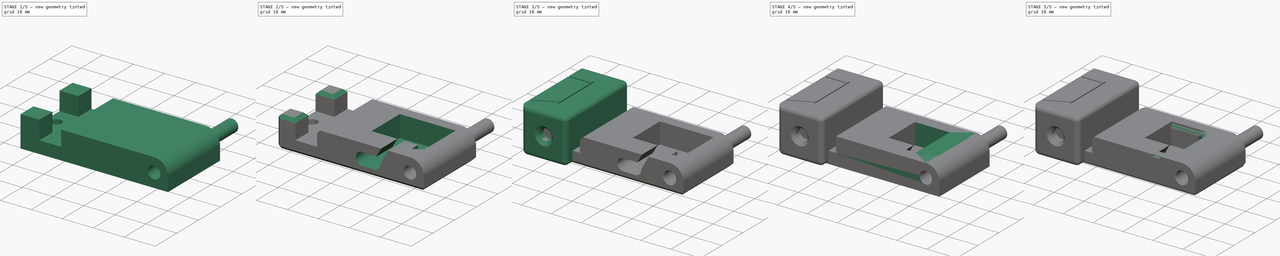
[diagram: build sequence overview — one tinted view per stage of 5, left to right]
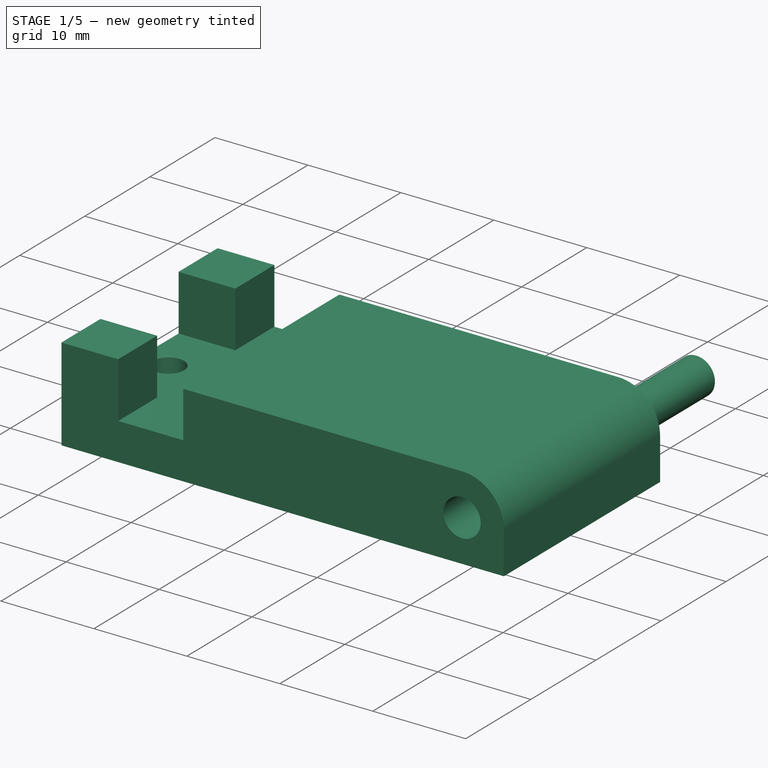
[diagram: stage 1 of 5 — iso view after this stage's code; geometry added in this stage tinted green]
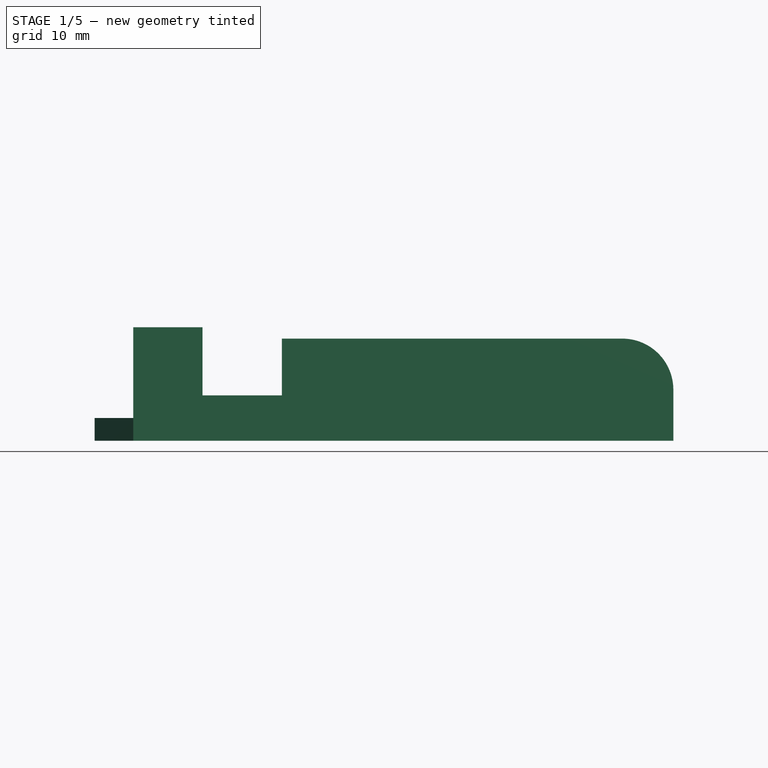
[diagram: stage 1 of 5 — front view after this stage's code; geometry added in this stage tinted green]
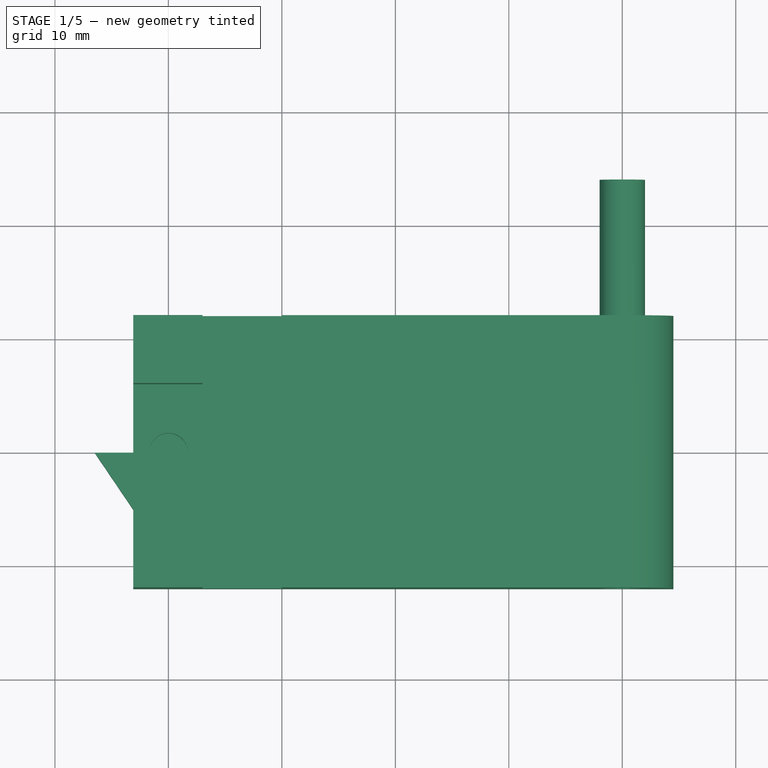
[diagram: stage 1 of 5 — top view after this stage's code; geometry added in this stage tinted green]
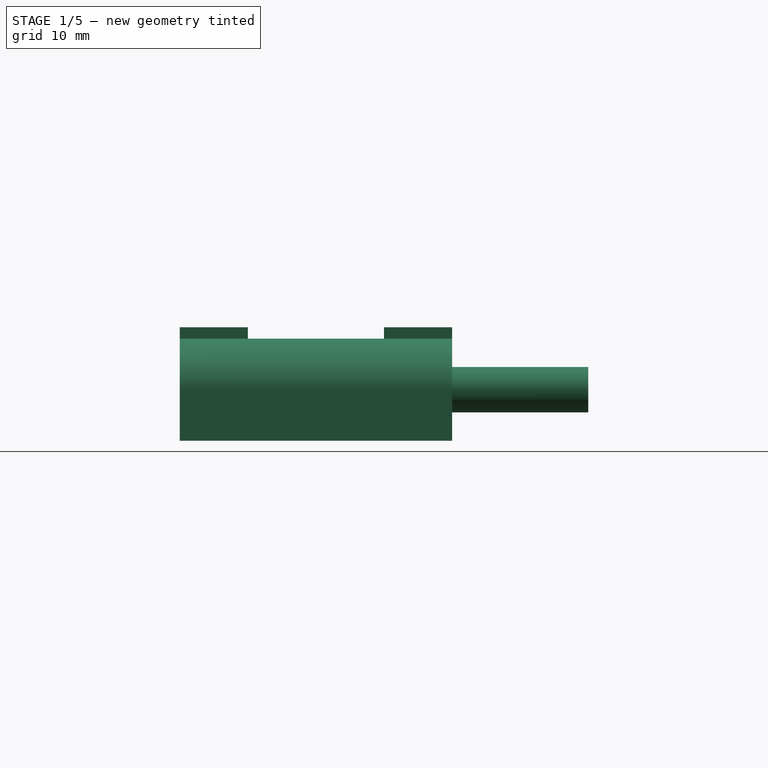
[diagram: stage 1 of 5 — right view after this stage's code; geometry added in this stage tinted green]
FCSTD DOCUMENT  (FreeCAD 0.20R30918 (Git))
Label: bowden_retainer_runout_holder
License: Creative Commons Attribution
LicenseURL: http://creativecommons.org/licenses/by/4.0/
objects: Sketcher::SketchObject×26, PartDesign::Pocket×17, PartDesign::Pad×9, PartDesign::Body×7, PartDesign::Fillet×6, PartDesign::Chamfer×4, PartDesign::Plane×1, App::Part×1
note: 142 computed .brp shape members not serialized (recipe doc carries the construction recipe); baked Part::Feature solids carry a one-line shape summary decoded from their .brp

FEATURE [PartDesign::Body] Body001  label="bowden_retainer"
  AutoGroupSolids = false
  ExportMode = 0
  Group = -> [Sketch,Pad,Sketch001,Pocket,Sketch002,Pocket001,Sketch003,Pocket002,Fillet,Fillet001,Fillet002,Chamfer,Fillet003,Fillet006]
  Origin = -> Origin002
  Tip = -> Fillet006
  TreeRank = 23
  _ExportChildren = -> [Pad,Pocket,Pocket001,Pocket002,Fillet,Fillet001,Fillet002,Chamfer,Fillet003,Fillet006]
  _GroupVersion = 1
FEATURE [Sketcher::SketchObject] Sketch014
  FullyConstrained = true
  MapMode = 5
  Support = -> [XY_Plane002]
  TreeRank = 26
  sketch-geometry (5):
    g0: Circle CenterX=0 CenterY=0 CenterZ=0 NormalX=0 NormalY=0 NormalZ=1 AngleXU=0 Radius=1.7
    g1: LineSegment StartX=-3.1 StartY=12 StartZ=0 EndX=44.5 EndY=12 EndZ=0
    g2: LineSegment StartX=44.5 StartY=12 StartZ=0 EndX=44.5 EndY=-12 EndZ=0
    g3: LineSegment StartX=44.5 StartY=-12 StartZ=0 EndX=-3.1 EndY=-12 EndZ=0
    g4: LineSegment StartX=-3.1 StartY=-12 StartZ=0 EndX=-3.1 EndY=12 EndZ=0
  constraints (13):
    c: Coincident(g0,g-1)
    c: Coincident(g1,g2)
    c: Coincident(g2,g3)
    c: Coincident(g3,g4)
    c: Coincident(g4,g1)
    c: Horizontal(g1)
    c: Horizontal(g3)
    c: Vertical(g2)
    c: Symmetric(g1,g3,g-1)
    c: DistanceY(g4,g4) = 24
    c: Radius(g0) = 1.7
    c: DistanceX(g3) = -3.1
    c: DistanceX(g3,g3) = 47.6
FEATURE [PartDesign::Pad] Pad003
  AddSubType = 0
  CheckUpToFaceLimits = true
  ClaimChildren = false
  Direction = (0,0,1)
  Fit = 0
  FitJoin = 0
  InnerFit = 0
  InnerFitJoin = 0
  InnerTaperAngle = 0
  InnerTaperAngleRev = 0
  Length = 10
  Length2 = 100
  Linearize = true
  NewSolid = false
  Profile = -> Sketch014
  Suppress = false
  TreeRank = 27
  Type = 0
  _ProfileBasedVersion = 1
FEATURE [Sketcher::SketchObject] Sketch015
  FullyConstrained = true
  MapMode = 5
  Placement = pos=(0,-12,0) rot=(1,0,0;1.5708rad)
  Support = -> [Pad003]
  TreeRank = 28
  sketch-geometry (7):
    g0: LineSegment StartX=3 StartY=10.1 StartZ=0 EndX=44.5 EndY=10.1 EndZ=0
    g1: LineSegment StartX=10 StartY=9 StartZ=0 EndX=10 EndY=4 EndZ=0
    g2: LineSegment StartX=10 StartY=4 StartZ=0 EndX=3 EndY=4 EndZ=0
    g3: LineSegment StartX=3 StartY=4 StartZ=0 EndX=3 EndY=10.1 EndZ=0
    g4: LineSegment StartX=40 StartY=9 StartZ=0 EndX=10 EndY=9 EndZ=0
    g5: ArcOfCircle CenterX=40 CenterY=4.5 CenterZ=0 NormalX=0 NormalY=0 NormalZ=1 AngleXU=0 Radius=4.5 StartAngle=0 EndAngle=1.5708
    g6: LineSegment StartX=44.5 StartY=4.5 StartZ=0 EndX=44.5 EndY=10.1 EndZ=0
  constraints (23):
    c: Coincident(g1,g2)
    c: Coincident(g2,g3)
    c: Coincident(g3,g0)
    c: Horizontal(g0)
    c: Horizontal(g2)
    c: Vertical(g1)
    c: Vertical(g3)
    c: DistanceX(g2) = 3
    c: DistanceX(g2,g2) = 7
    c: Horizontal(g4)
    c: DistanceY(g1,g4) = 5
    c: DistanceY(g2) = 4
    c: Radius(g5) = 4.5
    c: Coincident(g6,g5)
    c: Vertical(g6)
    c: Coincident(g4,g5)
    c: Horizontal(g5,g5)
    c: PointOnObject(g1,g4)
    c: DistanceY(g3,g3) = 6.1
    c: DistanceX(g4,g4) = 30
    c: Coincident(g0,g6)
    c: DistanceX(g5) = 40
    c: DistanceY(g5) = 4.5
FEATURE [PartDesign::Pocket] Pocket011
  AddSubType = 1
  BaseFeature = -> Pad003
  CheckUpToFaceLimits = true
  ClaimChildren = false
  Fit = 0
  FitJoin = 0
  InnerFit = 0
  InnerFitJoin = 0
  InnerTaperAngle = 0
  InnerTaperAngleRev = 0
  Length = 5
  Length2 = 100
  Linearize = true
  NewSolid = false
  Profile = -> Sketch015
  Suppress = false
  TreeRank = 29
  Type = 1
  _ProfileBasedVersion = 1
  _Version = 0
FEATURE [Sketcher::SketchObject] Sketch016
  FullyConstrained = true
  MapMode = 5
  Placement = pos=(0,-12,0) rot=(1,0,0;1.5708rad)
  Support = -> [Pocket011]
  TreeRank = 30
  sketch-geometry (1):
    g0: Circle CenterX=40 CenterY=4.5 CenterZ=0 NormalX=0 NormalY=0 NormalZ=1 AngleXU=0 Radius=2
  constraints (3):
    c: Radius(g0) = 2
    c: DistanceX(g0) = 40
    c: DistanceY(g0) = 4.5
FEATURE [PartDesign::Pocket] Pocket012
  AddSubType = 1
  BaseFeature = -> Pocket011
  CheckUpToFaceLimits = true
  ClaimChildren = false
  Fit = 0
  FitJoin = 0
  InnerFit = 0
  InnerFitJoin = 0
  InnerTaperAngle = 0
  InnerTaperAngleRev = 0
  Length = 6
  Length2 = 100
  Linearize = true
  NewSolid = false
  Profile = -> Sketch016
  Suppress = false
  TreeRank = 94
  Type = 0
  _ProfileBasedVersion = 1
  _Version = 0
FEATURE [Sketcher::SketchObject] Sketch017
  FullyConstrained = true
  MapMode = 5
  Placement = pos=(0,0,10) rot=(0,0,1;0rad)
  Support = -> [Pocket012]
  TreeRank = 32
  sketch-geometry (4):
    g0: LineSegment StartX=-3.5 StartY=6 StartZ=0 EndX=3.5 EndY=6 EndZ=0
    g1: LineSegment StartX=3.5 StartY=6 StartZ=0 EndX=3.5 EndY=-6 EndZ=0
    g2: LineSegment StartX=3.5 StartY=-6 StartZ=0 EndX=-3.5 EndY=-6 EndZ=0
    g3: LineSegment StartX=-3.5 StartY=-6 StartZ=0 EndX=-3.5 EndY=6 EndZ=0
  constraints (10):
    c: Coincident(g0,g1)
    c: Coincident(g1,g2)
    c: Coincident(g2,g3)
    c: Coincident(g3,g0)
    c: Horizontal(g2)
    c: Vertical(g1)
    c: Symmetric(g2,g0,g-1)
    c: DistanceY(g3,g3) = 12
    c: DistanceX(g2,g2) = 7
    c: Symmetric(g0,g0,g-2)
FEATURE [PartDesign::Pocket] Pocket013
  AddSubType = 1
  BaseFeature = -> Pocket012
  CheckUpToFaceLimits = true
  ClaimChildren = false
  Fit = 0
  FitJoin = 0
  InnerFit = 0
  InnerFitJoin = 0
  InnerTaperAngle = 0
  InnerTaperAngleRev = 0
  Length = 6
  Length2 = 100
  Linearize = true
  NewSolid = false
  Profile = -> Sketch017
  Suppress = false
  TreeRank = 96
  Type = 0
  _ProfileBasedVersion = 1
  _Version = 0
FEATURE [PartDesign::Body] Body005  label="cut_guide"
  AutoGroupSolids = false
  ExportMode = 0
  Group = -> [Sketch027,Pad008,Sketch028,Pocket019,Sketch029,Pocket020,Sketch030,Pocket021,Fillet010,Chamfer005]
  Origin = -> Origin008
  Tip = -> Chamfer005
  TreeRank = 172
  _ExportChildren = -> [Pad008,Pocket019,Pocket020,Pocket021,Fillet010,Chamfer005]
  _GroupVersion = 1
FEATURE [Sketcher::SketchObject] Sketch033
  FullyConstrained = false
  MapMode = 5
  Placement = pos=(0,12,0) rot=(0,0.707107,0.707107;3.14159rad)
  Support = -> [Pocket013]
  TreeRank = 195
  sketch-geometry (1):
    g0: Circle CenterX=-40 CenterY=4.5 CenterZ=0 NormalX=0 NormalY=0 NormalZ=1 AngleXU=0 Radius=2
  constraints (1):
    c: Radius(g0) = 2
FEATURE [PartDesign::Pocket] Pocket022
  AddSubType = 1
  BaseFeature = -> Pocket013
  CheckUpToFaceLimits = true
  ClaimChildren = false
  Fit = 0
  FitJoin = 0
  InnerFit = 0
  InnerFitJoin = 0
  InnerTaperAngle = 0
  InnerTaperAngleRev = 0
  Length = 5
  Length2 = 100
  Linearize = true
  NewSolid = false
  Profile = -> Sketch033
  Suppress = false
  TreeRank = 196
  Type = 0
  _ProfileBasedVersion = 1
  _Version = 1
FEATURE [PartDesign::Body] Body002  label="runout"
  AutoGroupSolids = false
  ExportMode = 0
  Group = -> [Sketch014,Pad003,Sketch015,Pocket011,Sketch016,Pocket012,Sketch017,Pocket013,Sketch020,Sketch021,Sketch023,Sketch024,Sketch032,Sketch033,Pocket022,Sketch034,Pocket023,Pocket024,Pocket025,Pocket026,Pocket027,Pocket028,Chamfer006,Chamfer007]
  Origin = -> Origin004
  Placement = pos=(0,31.9,0) rot=(0,0,1;0rad)
  Tip = -> Chamfer007
  TreeRank = 97
  _ExportChildren = -> [Pad003,Pocket011,Pocket012,Pocket013,Pocket022,Pocket023,Pocket024,Pocket025,Pocket026,Pocket027,Pocket028,Chamfer006,Chamfer007]
  _GroupVersion = 1
FEATURE [Sketcher::SketchObject] Sketch035
  FullyConstrained = false
  MapMode = 5
  Placement = pos=(0,0,0) rot=(1,0,0;1.5708rad)
  Support = -> [XZ_Plane006]
  TreeRank = 156
  sketch-geometry (2):
    g0: Circle CenterX=40 CenterY=4.5 CenterZ=0 NormalX=0 NormalY=0 NormalZ=1 AngleXU=0 Radius=2
    g1: Circle CenterX=40 CenterY=4.5 CenterZ=0 NormalX=0 NormalY=0 NormalZ=1 AngleXU=0 Radius=1.2
  constraints (3):
    c: Radius(g0) = 2
    c: Coincident(g1,g0)
    c: Radius(g1) = 1.2
FEATURE [PartDesign::Pad] Pad009
  AddSubType = 0
  AlongSketchNormal = false
  CheckUpToFaceLimits = true
  ClaimChildren = false
  Direction = (0,-1,-2e-16)
  Fit = 0
  FitJoin = 0
  InnerFit = 0
  InnerFitJoin = 0
  InnerTaperAngle = 0
  InnerTaperAngleRev = 0
  Length = 24
  Length2 = 100
  Linearize = true
  NewSolid = false
  Placement = pos=(0,0,0) rot=(1,0,0;1.5708rad)
  Profile = -> Sketch035
  Reversed = true
  Suppress = false
  TreeRank = 158
  Type = 0
  _ProfileBasedVersion = 1
FEATURE [PartDesign::Body] Body006  label="PTFE_in"
  AutoGroupSolids = false
  ExportMode = 0
  Group = -> [Sketch035,Pad009]
  Origin = -> Origin009
  Placement = pos=(0,49.2,0) rot=(0,0,1;0rad)
  Tip = -> Pad009
  TreeRank = 206
  _ExportChildren = -> [Pad009]
  _GroupVersion = 1
FEATURE [Sketcher::SketchObject] Sketch036
  FullyConstrained = true
  MapMode = 5
  Support = -> [XY_Plane007]
  TreeRank = 217
  sketch-geometry (8):
    g0: LineSegment StartX=2.5 StartY=0 StartZ=0 EndX=2.5 EndY=10 EndZ=0
    g1: LineSegment StartX=2.5 StartY=10 StartZ=0 EndX=-2.5 EndY=10 EndZ=0
    g2: LineSegment StartX=-2.5 StartY=10 StartZ=0 EndX=-2.5 EndY=0 EndZ=0
    g3: LineSegment StartX=6.5 StartY=0 StartZ=0 EndX=2.5 EndY=0 EndZ=0
    g4: LineSegment StartX=-6.5 StartY=0 StartZ=0 EndX=0 EndY=-9.59808 EndZ=0
    g5: LineSegment StartX=0 StartY=-9.59808 StartZ=0 EndX=6.5 EndY=0 EndZ=0
    g6: Circle [constr] CenterX=-2e-16 CenterY=-2.59808 CenterZ=0 NormalX=0 NormalY=0 NormalZ=1 AngleXU=0 Radius=7
    g7: LineSegment StartX=-2.5 StartY=0 StartZ=0 EndX=-6.5 EndY=0 EndZ=0
  constraints (22):
    c: Coincident(g0,g1)
    c: Coincident(g1,g2)
    c: Vertical(g0)
    c: Vertical(g2)
    c: PointOnObject(g2,g-1)
    c: Coincident(g7,g4)
    c: Coincident(g4,g5)
    c: Coincident(g5,g3)
    c: PointOnObject(g7,g6)
    c: PointOnObject(g4,g6)
    c: PointOnObject(g5,g6)
    c: Horizontal(g3)
    c: Symmetric(g1,g0,g-2)
    c: DistanceX(g1,g1) = 5
    c: Radius(g6) = 7
    c: PointOnObject(g4,g-2)
    c: DistanceY(g2,g2) = 10
    c: Coincident(g7,g2)
    c: Coincident(g3,g0)
    c: Symmetric(g4,g3,g-2)
    c: Horizontal(g7)
    c: DistanceX(g4,g3) = 13
FEATURE [PartDesign::Pad] Pad010
  AddSubType = 0
  AlongSketchNormal = false
  CheckUpToFaceLimits = true
  ClaimChildren = false
  Direction = (0,0,1)
  Fit = 0
  FitJoin = 0
  InnerFit = 0
  InnerFitJoin = 0
  InnerTaperAngle = 0
  InnerTaperAngleRev = 0
  Length = 2
  Length2 = 100
  Linearize = true
  NewSolid = false
  Profile = -> Sketch036
  Suppress = false
  TreeRank = 218
  Type = 0
  _ProfileBasedVersion = 1
FEATURE [PartDesign::Body] Body007  label="filament"
  AutoGroupSolids = false
  ExportMode = 0
  Group = -> [Sketch036,Pad010]
  Origin = -> Origin010
  Placement = pos=(40,91.9,3.5) rot=(0,0,1;0rad)
  Tip = -> Pad010
  TreeRank = 216
  _ExportChildren = -> [Pad010]
  _GroupVersion = 1
FEATURE [App::Part] Part
  ExportMode = 1
  Group = -> [Body001,Body002,Body004,Body,Body005,Body006,Body007]
  Origin = -> Origin
  TreeRank = 145
  _ExportChildren = -> [Body001,Body002,Body004,Body,Body005,Body006,Body007]
  _GroupVersion = 1
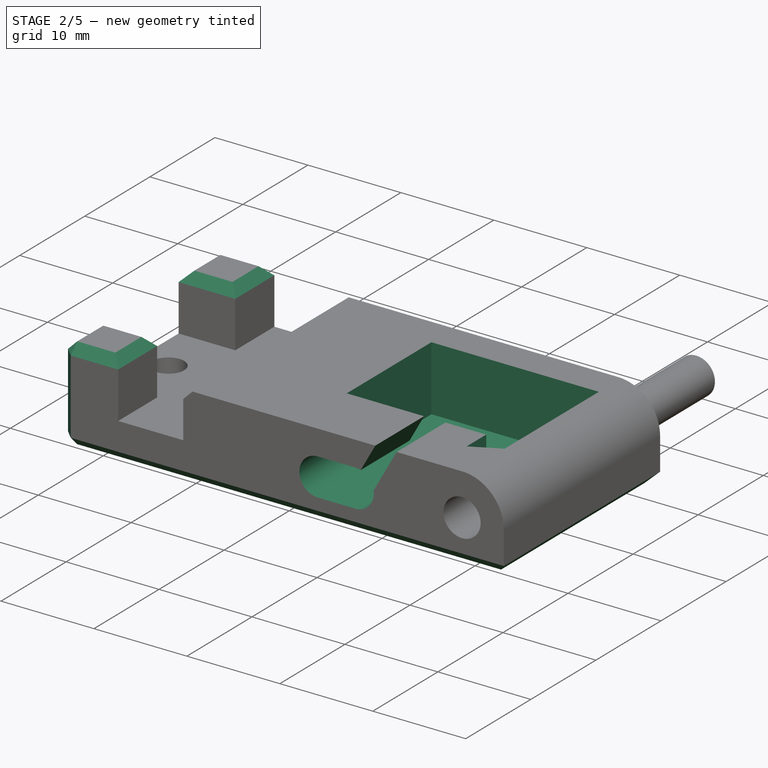
[diagram: stage 2 of 5 — iso view after this stage's code; geometry added in this stage tinted green]
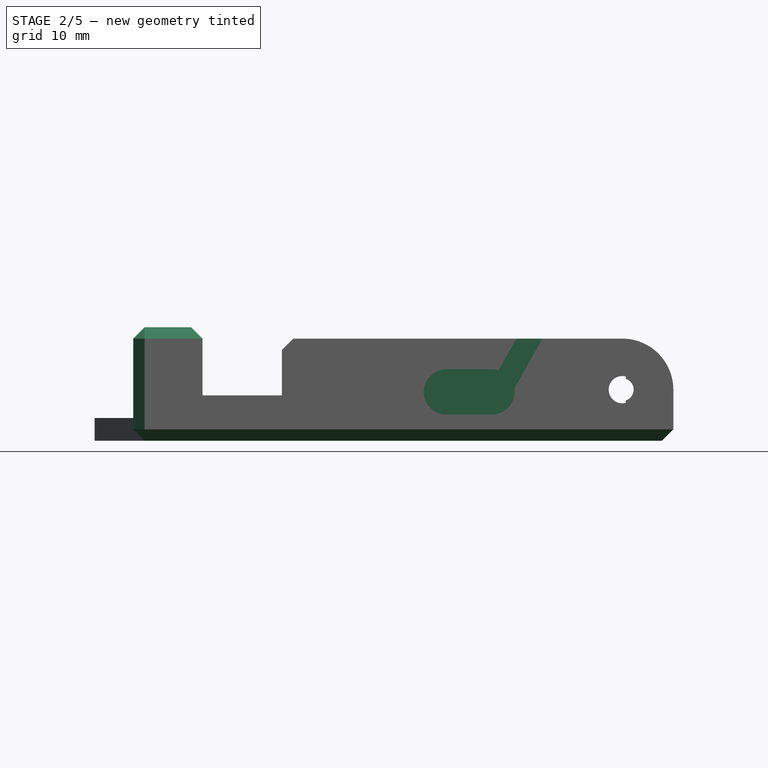
[diagram: stage 2 of 5 — front view after this stage's code; geometry added in this stage tinted green]
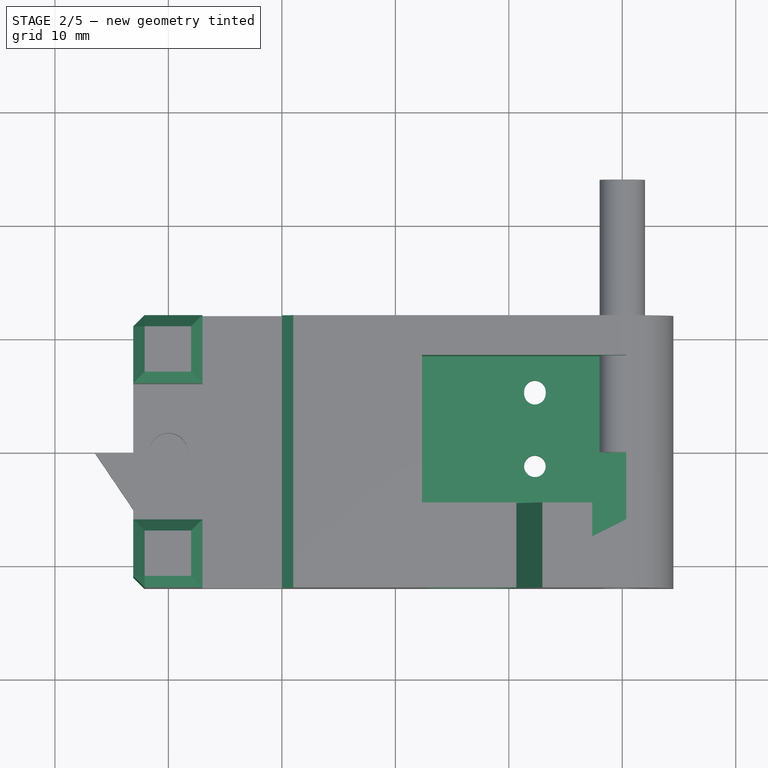
[diagram: stage 2 of 5 — top view after this stage's code; geometry added in this stage tinted green]
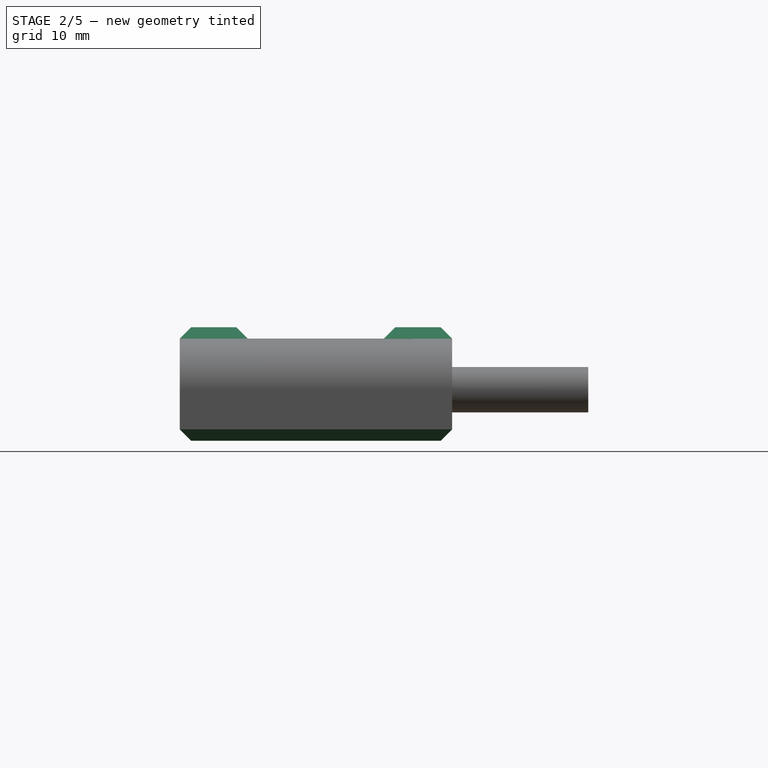
[diagram: stage 2 of 5 — right view after this stage's code; geometry added in this stage tinted green]
FEATURE [Sketcher::SketchObject] Sketch034
  ExternalGeometry = -> [Pocket022]
  FullyConstrained = false
  MapMode = 5
  Placement = pos=(2.1e-15,7,-3.6e-15) rot=(0,0.707107,0.707107;3.14159rad)
  Support = -> [Pocket022]
  TreeRank = 197
  sketch-geometry (1):
    g0: Circle CenterX=-40 CenterY=4.5 CenterZ=0 NormalX=0 NormalY=0 NormalZ=1 AngleXU=0 Radius=0.999503
  constraints (1):
    c: Coincident(g0,g-3)
FEATURE [PartDesign::Pocket] Pocket023
  AddSubType = 1
  BaseFeature = -> Pocket022
  CheckUpToFaceLimits = true
  ClaimChildren = false
  Fit = 0
  FitJoin = 0
  InnerFit = 0
  InnerFitJoin = 0
  InnerTaperAngle = 0
  InnerTaperAngleRev = 0
  Length = 5
  Length2 = 100
  Linearize = true
  NewSolid = false
  Profile = -> Sketch034
  Suppress = false
  TreeRank = 198
  Type = 1
  _ProfileBasedVersion = 1
  _Version = 1
FEATURE [PartDesign::Pocket] Pocket024
  AddSubType = 1
  BaseFeature = -> Pocket023
  CheckUpToFaceLimits = true
  ClaimChildren = false
  Fit = 0
  FitJoin = 0
  InnerFit = 0
  InnerFitJoin = 0
  InnerTaperAngle = 0
  InnerTaperAngleRev = 0
  Length = 7
  Length2 = 100
  Linearize = true
  NewSolid = false
  Profile = -> Sketch020
  Suppress = false
  TreeRank = 199
  Type = 0
  _ProfileBasedVersion = 1
  _Version = 1
FEATURE [Sketcher::SketchObject] Sketch021
  FullyConstrained = true
  MapMode = 5
  Placement = pos=(0,5e-16,2) rot=(0,0,1;0rad)
  Support = -> [Pocket024]
  TreeRank = 127
  sketch-geometry (5):
    g0: ArcOfCircle CenterX=32.3 CenterY=5.4 CenterZ=0 NormalX=0 NormalY=0 NormalZ=1 AngleXU=0 Radius=0.95 StartAngle=6.451e-13 EndAngle=3.14159
    g1: ArcOfCircle CenterX=32.3 CenterY=5.2 CenterZ=0 NormalX=0 NormalY=0 NormalZ=1 AngleXU=0 Radius=0.95 StartAngle=3.14159 EndAngle=6.28319
    g2: LineSegment StartX=31.35 StartY=5.4 StartZ=0 EndX=31.35 EndY=5.2 EndZ=0
    g3: LineSegment StartX=33.25 StartY=5.2 StartZ=0 EndX=33.25 EndY=5.4 EndZ=0
    g4: Circle CenterX=32.3 CenterY=-1.2 CenterZ=0 NormalX=0 NormalY=0 NormalZ=1 AngleXU=0 Radius=0.95
  constraints (13):
    c: Tangent(g0,g2) = -1.5708
    c: Tangent(g2,g1) = -1.5708
    c: Tangent(g1,g3) = -1.5708
    c: Tangent(g3,g0) = -1.5708
    c: Equal(g0,g1)
    c: Radius(g1) = 0.95
    c: Radius(g4) = 0.95
    c: DistanceY(g4,g1) = 6.4
    c: Vertical(g2)
    c: DistanceX(g4) = 32.3
    c: DistanceY(g4) = -1.2
    c: Vertical(g1,g4)
    c: DistanceY(g3,g3) = 0.2
FEATURE [PartDesign::Pocket] Pocket025
  AddSubType = 1
  BaseFeature = -> Pocket024
  CheckUpToFaceLimits = true
  ClaimChildren = false
  Fit = 0
  FitJoin = 0
  InnerFit = 0
  InnerFitJoin = 0
  InnerTaperAngle = 0
  InnerTaperAngleRev = 0
  Length = 5
  Length2 = 100
  Linearize = true
  NewSolid = false
  Profile = -> Sketch021
  Suppress = false
  TreeRank = 200
  Type = 0
  _ProfileBasedVersion = 1
  _Version = 1
FEATURE [Sketcher::SketchObject] Sketch023
  FullyConstrained = true
  MapMode = 5
  Placement = pos=(0,2e-15,9) rot=(0,0,1;0rad)
  Support = -> [Pocket025]
  TreeRank = 133
  sketch-geometry (4):
    g0: LineSegment StartX=40.35 StartY=-4.5 StartZ=0 EndX=37.35 EndY=-4.5 EndZ=0
    g1: LineSegment StartX=37.35 StartY=-4.5 StartZ=0 EndX=37.35 EndY=-7.5 EndZ=0
    g2: LineSegment StartX=40.35 StartY=-5.98 StartZ=0 EndX=40.35 EndY=-4.5 EndZ=0
    g3: LineSegment StartX=37.35 StartY=-7.5 StartZ=0 EndX=40.35 EndY=-5.98 EndZ=0
  constraints (12):
    c: Coincident(g0,g1)
    c: Coincident(g2,g0)
    c: Horizontal(g0)
    c: Vertical(g1)
    c: Vertical(g2)
    c: DistanceX(g0,g0) = 3
    c: DistanceY(g1,g1) = 3
    c: Coincident(g3,g1)
    c: Coincident(g3,g2)
    c: DistanceX(g0) = 37.35
    c: DistanceY(g0) = -4.5
    c: DistanceY(g2,g2) = 1.48
FEATURE [PartDesign::Pocket] Pocket026
  AddSubType = 1
  BaseFeature = -> Pocket025
  CheckUpToFaceLimits = true
  ClaimChildren = false
  Fit = 0
  FitJoin = 0
  InnerFit = 0
  InnerFitJoin = 0
  InnerTaperAngle = 0
  InnerTaperAngleRev = 0
  Length = 7
  Length2 = 100
  Linearize = true
  NewSolid = false
  Profile = -> Sketch023
  Suppress = false
  TreeRank = 201
  Type = 0
  _ProfileBasedVersion = 1
  _Version = 1
FEATURE [Sketcher::SketchObject] Sketch024
  FullyConstrained = true
  MapMode = 5
  Placement = pos=(0,-12,0) rot=(1,0,0;1.5708rad)
  Support = -> [Pocket026]
  TreeRank = 143
  sketch-geometry (4):
    g0: ArcOfCircle CenterX=28.5 CenterY=4.3 CenterZ=0 NormalX=0 NormalY=0 NormalZ=1 AngleXU=0 Radius=2 StartAngle=4.71239 EndAngle=7.85398
    g1: ArcOfCircle CenterX=24.5 CenterY=4.3 CenterZ=0 NormalX=0 NormalY=0 NormalZ=1 AngleXU=0 Radius=2 StartAngle=1.5708 EndAngle=4.71239
    g2: LineSegment StartX=28.5 StartY=6.3 StartZ=0 EndX=24.5 EndY=6.3 EndZ=0
    g3: LineSegment StartX=24.5 StartY=2.3 StartZ=0 EndX=28.5 EndY=2.3 EndZ=0
  constraints (10):
    c: Tangent(g0,g2) = -1.5708
    c: Tangent(g2,g1) = -1.5708
    c: Tangent(g1,g3) = -1.5708
    c: Tangent(g3,g0) = -1.5708
    c: Equal(g0,g1)
    c: Horizontal(g3)
    c: DistanceY(g1,g1) = 4
    c: DistanceX(g2,g2) = 4
    c: DistanceX(g1) = 24.5
    c: DistanceY(g1) = 2.3
FEATURE [PartDesign::Pocket] Pocket027
  AddSubType = 1
  BaseFeature = -> Pocket026
  CheckUpToFaceLimits = true
  ClaimChildren = false
  Fit = 0
  FitJoin = 0
  InnerFit = 0
  InnerFitJoin = 0
  InnerTaperAngle = 0
  InnerTaperAngleRev = 0
  Length = 8
  Length2 = 100
  Linearize = true
  NewSolid = false
  Profile = -> Sketch024
  Suppress = false
  TreeRank = 202
  Type = 0
  _ProfileBasedVersion = 1
  _Version = 1
FEATURE [Sketcher::SketchObject] Sketch032
  FullyConstrained = false
  MapMode = 5
  Placement = pos=(0,-12,0) rot=(1,0,0;1.5708rad)
  Support = -> [Pocket027]
  TreeRank = 192
  sketch-geometry (5):
    g0: LineSegment StartX=31.3921 StartY=10.2869 StartZ=0 EndX=27.85 EndY=3.99207 EndZ=0
    g1: LineSegment StartX=33.687 StartY=10.2869 StartZ=0 EndX=30.1449 EndY=3.99207 EndZ=0
    g2: LineSegment [constr] StartX=32.1547 StartY=7.56369 StartZ=0 EndX=30.4117 EndY=8.5445 EndZ=0
    g3: LineSegment StartX=31.3921 StartY=10.2869 StartZ=0 EndX=33.687 EndY=10.2869 EndZ=0
    g4: LineSegment StartX=27.85 StartY=3.99207 StartZ=0 EndX=30.1449 EndY=3.99207 EndZ=0
  constraints (11):
    c: Parallel(g0,g1)
    c: PointOnObject(g2,g1)
    c: PointOnObject(g2,g0)
    c: Perpendicular(g2,g1)
    c: Distance(g2) = 2
    c: Coincident(g3,g0)
    c: Coincident(g3,g1)
    c: Horizontal(g3)
    c: Coincident(g4,g0)
    c: Coincident(g4,g1)
    c: Horizontal(g4)
FEATURE [PartDesign::Pocket] Pocket028
  AddSubType = 1
  BaseFeature = -> Pocket027
  CheckUpToFaceLimits = true
  ClaimChildren = false
  Fit = 0
  FitJoin = 0
  InnerFit = 0
  InnerFitJoin = 0
  InnerTaperAngle = 0
  InnerTaperAngleRev = 0
  Length = 8
  Length2 = 100
  Linearize = true
  NewSolid = false
  Profile = -> Sketch032
  Suppress = false
  TreeRank = 203
  Type = 0
  _ProfileBasedVersion = 1
  _Version = 1
FEATURE [PartDesign::Chamfer] Chamfer006
  AddSubType = 0
  Angle = 45
  Base = -> Pocket028 [Edge58,Edge24,Edge84,Edge86,Edge29,Edge20,Edge4,Edge28,Edge40,Edge25,Edge2,Edge11,Edge13,Edge1,Edge12]
  BaseFeature = -> Pocket028
  ChamferType = 0
  FlipDirection = false
  NewSolid = false
  Size = 1
  Size2 = 1
  SupportTransform = false
  Suppress = false
  TreeRank = 204
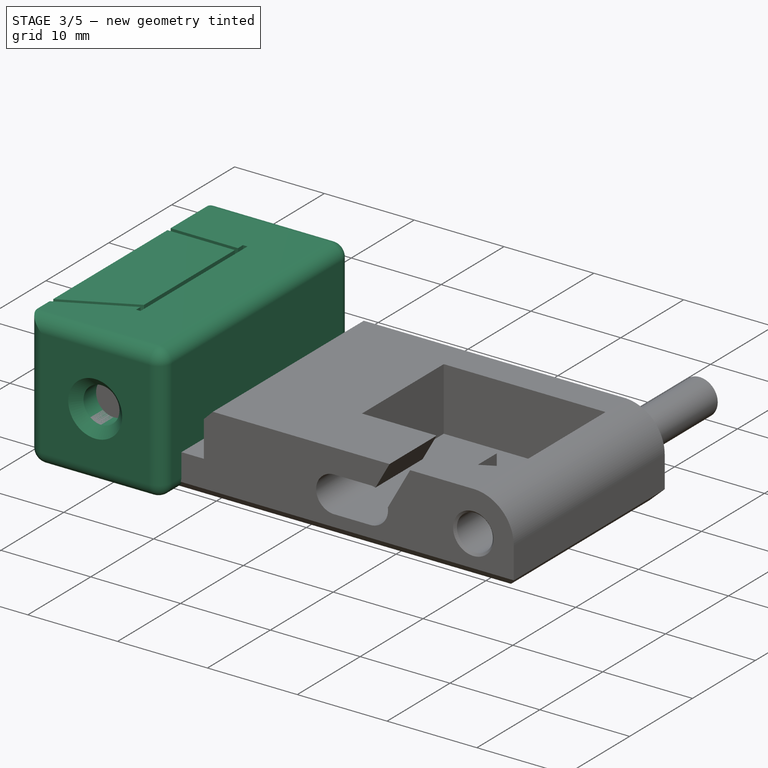
[diagram: stage 3 of 5 — iso view after this stage's code; geometry added in this stage tinted green]
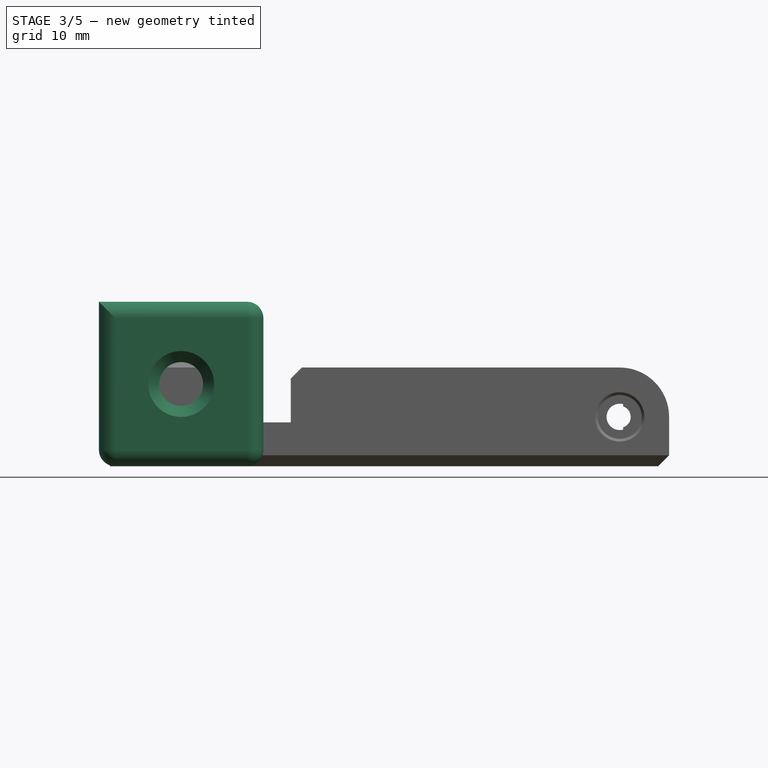
[diagram: stage 3 of 5 — front view after this stage's code; geometry added in this stage tinted green]
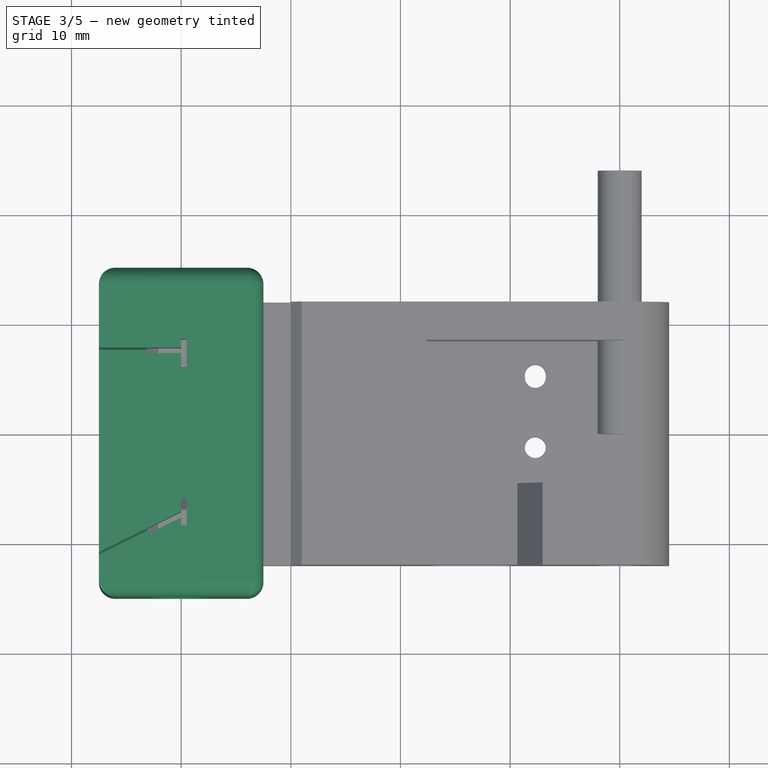
[diagram: stage 3 of 5 — top view after this stage's code; geometry added in this stage tinted green]
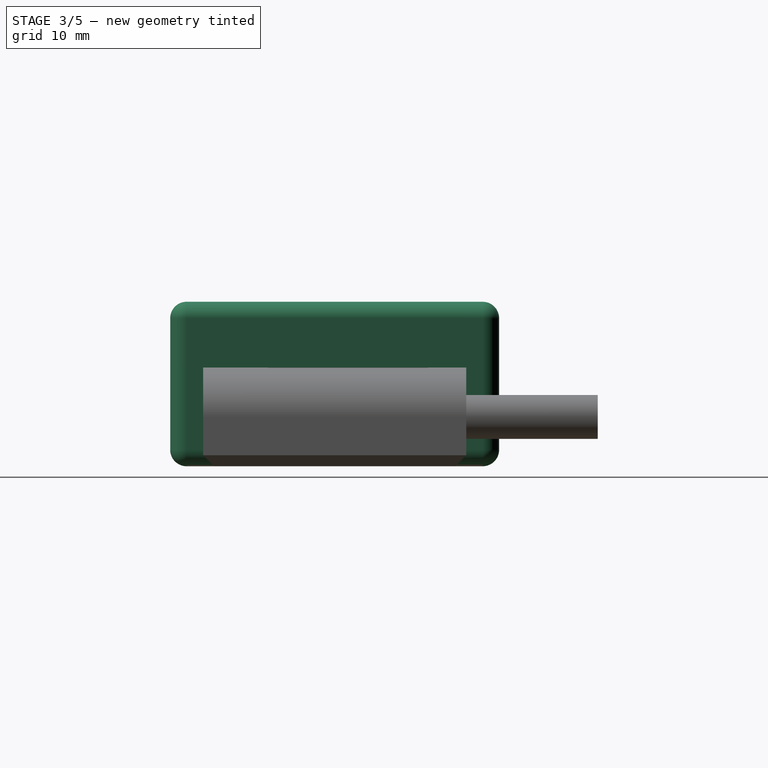
[diagram: stage 3 of 5 — right view after this stage's code; geometry added in this stage tinted green]
FEATURE [PartDesign::Body] Body004  label="Switch"
  AutoGroupSolids = false
  ExportMode = 0
  Group = -> [Sketch018,Pad004,Sketch019,Pad005,Sketch022,Pad006]
  Origin = -> Origin006
  Placement = pos=(34,33.95,14) rot=(0,0,-1;1.5708rad)
  Tip = -> Pad006
  TreeRank = 119
  _ExportChildren = -> [Pad004,Pad005,Pad006]
  _GroupVersion = 1
FEATURE [Sketcher::SketchObject] Sketch025
  FullyConstrained = false
  MapMode = 5
  Placement = pos=(0,0,0) rot=(1,0,0;1.5708rad)
  Support = -> [XZ_Plane]
  TreeRank = 156
  sketch-geometry (2):
    g0: Circle CenterX=40 CenterY=4.5 CenterZ=0 NormalX=0 NormalY=0 NormalZ=1 AngleXU=0 Radius=2
    g1: Circle CenterX=40 CenterY=4.5 CenterZ=0 NormalX=0 NormalY=0 NormalZ=1 AngleXU=0 Radius=1.2
  constraints (3):
    c: Radius(g0) = 2
    c: Coincident(g1,g0)
    c: Radius(g1) = 1.2
FEATURE [PartDesign::Pad] Pad007
  AddSubType = 0
  AlongSketchNormal = false
  CheckUpToFaceLimits = true
  ClaimChildren = false
  Direction = (0,-1,-2e-16)
  Fit = 0
  FitJoin = 0
  InnerFit = 0
  InnerFitJoin = 0
  InnerTaperAngle = 0
  InnerTaperAngleRev = 0
  Length = 24
  Length2 = 100
  Linearize = true
  NewSolid = false
  Placement = pos=(0,0,0) rot=(1,0,0;1.5708rad)
  Profile = -> Sketch025
  Reversed = true
  Suppress = false
  TreeRank = 158
  Type = 0
  _ProfileBasedVersion = 1
FEATURE [PartDesign::Body] Body  label="PTFE_out"
  AutoGroupSolids = false
  ExportMode = 0
  Group = -> [Sketch025,Pad007,DatumPlane,Sketch026,Pocket018]
  Origin = -> Origin007
  Placement = pos=(0,-7.1,0) rot=(0,0,1;0rad)
  Tip = -> Pocket018
  TreeRank = 155
  _ExportChildren = -> [Pad007,DatumPlane,Pocket018]
  _GroupVersion = 1
FEATURE [Sketcher::SketchObject] Sketch027
  FullyConstrained = true
  MapMode = 5
  Support = -> [XY_Plane005]
  TreeRank = 173
  sketch-geometry (4):
    g0: LineSegment StartX=-7.5 StartY=15 StartZ=0 EndX=7.5 EndY=15 EndZ=0
    g1: LineSegment StartX=7.5 StartY=15 StartZ=0 EndX=7.5 EndY=-15 EndZ=0
    g2: LineSegment StartX=7.5 StartY=-15 StartZ=0 EndX=-7.5 EndY=-15 EndZ=0
    g3: LineSegment StartX=-7.5 StartY=-15 StartZ=0 EndX=-7.5 EndY=15 EndZ=0
  constraints (11):
    c: Coincident(g0,g1)
    c: Coincident(g1,g2)
    c: Coincident(g2,g3)
    c: Coincident(g3,g0)
    c: Horizontal(g0)
    c: Horizontal(g2)
    c: Vertical(g1)
    c: Vertical(g3)
    c: DistanceX(g0,g0) = 15
    c: Symmetric(g0,g1,g-1)
    c: DistanceY(g3,g3) = 30
FEATURE [PartDesign::Pad] Pad008
  AddSubType = 0
  CheckUpToFaceLimits = true
  ClaimChildren = false
  Direction = (0,0,1)
  Fit = 0
  FitJoin = 0
  InnerFit = 0
  InnerFitJoin = 0
  InnerTaperAngle = 0
  InnerTaperAngleRev = 0
  Length = 15
  Length2 = 100
  Linearize = true
  NewSolid = false
  Profile = -> Sketch027
  Suppress = false
  TreeRank = 174
  Type = 0
  _ProfileBasedVersion = 1
FEATURE [Sketcher::SketchObject] Sketch028
  FullyConstrained = true
  MapMode = 5
  Placement = pos=(0,-15,0) rot=(1,0,0;1.5708rad)
  Support = -> [Pad008]
  TreeRank = 175
  sketch-geometry (1):
    g0: Circle CenterX=0 CenterY=7.5 CenterZ=0 NormalX=0 NormalY=0 NormalZ=1 AngleXU=0 Radius=2
  constraints (3):
    c: PointOnObject(g0,g-2)
    c: DistanceY(g-1,g0) = 7.5
    c: Radius(g0) = 2
FEATURE [PartDesign::Pocket] Pocket019
  AddSubType = 1
  BaseFeature = -> Pad008
  CheckUpToFaceLimits = true
  ClaimChildren = false
  Fit = 0
  FitJoin = 0
  InnerFit = 0
  InnerFitJoin = 0
  InnerTaperAngle = 0
  InnerTaperAngleRev = 0
  Length = 29
  Length2 = 100
  Linearize = true
  NewSolid = false
  Profile = -> Sketch028
  Suppress = false
  TreeRank = 176
  Type = 0
  _ProfileBasedVersion = 1
  _Version = 0
FEATURE [Sketcher::SketchObject] Sketch029
  FullyConstrained = false
  MapMode = 5
  Placement = pos=(0,0,15) rot=(0,0,1;0rad)
  Support = -> [Pocket019]
  TreeRank = 177
  sketch-geometry (4):
    g0: LineSegment StartX=0 StartY=8.5 StartZ=0 EndX=0.5 EndY=8.5 EndZ=0
    g1: LineSegment StartX=0.5 StartY=8.5 StartZ=0 EndX=0.5 EndY=-8.5 EndZ=0
    g2: LineSegment StartX=0.5 StartY=-8.5 StartZ=0 EndX=0 EndY=-8.5 EndZ=0
    g3: LineSegment StartX=0 StartY=-8.5 StartZ=0 EndX=0 EndY=8.5 EndZ=0
  constraints (11):
    c: Coincident(g0,g1)
    c: Coincident(g1,g2)
    c: Coincident(g2,g3)
    c: Coincident(g3,g0)
    c: Horizontal(g0)
    c: Horizontal(g2)
    c: Vertical(g1)
    c: Vertical(g3)
    c: DistanceX(g0,g0) = 0.5
    c: DistanceY(g1,g1) = 17
    c: PointOnObject(g0,g-2)
FEATURE [PartDesign::Pocket] Pocket020
  AddSubType = 1
  BaseFeature = -> Pocket019
  CheckUpToFaceLimits = true
  ClaimChildren = false
  Fit = 0
  FitJoin = 0
  InnerFit = 0
  InnerFitJoin = 0
  InnerTaperAngle = 0
  InnerTaperAngleRev = 0
  Length = 10
  Length2 = 100
  Linearize = true
  NewSolid = false
  Profile = -> Sketch029
  Suppress = false
  TreeRank = 178
  Type = 0
  _ProfileBasedVersion = 1
  _Version = 0
FEATURE [Sketcher::SketchObject] Sketch030
  FullyConstrained = false
  MapMode = 5
  Placement = pos=(0,0,15) rot=(0,0,1;0rad)
  Support = -> [Pocket020]
  TreeRank = 179
  sketch-geometry (9):
    g0: LineSegment StartX=0.0952766 StartY=-7.75388 StartZ=0 EndX=-7.81832 EndY=-11.6791 EndZ=0
    g1: LineSegment StartX=0.0952766 StartY=-7.197 StartZ=0 EndX=-7.81832 EndY=-11.1223 EndZ=0
    g2: LineSegment StartX=-7.81832 StartY=-11.1223 StartZ=0 EndX=-7.81832 EndY=-11.6791 EndZ=0
    g3: LineSegment StartX=0.0952766 StartY=-7.197 StartZ=0 EndX=0.0952766 EndY=-7.75388 EndZ=0
    g4: LineSegment StartX=0.0952766 StartY=7.2 StartZ=0 EndX=-7.68808 EndY=7.2 EndZ=0
    g5: LineSegment StartX=-7.68808 StartY=7.2 StartZ=0 EndX=-7.68808 EndY=7.7 EndZ=0
    g6: LineSegment StartX=-7.68808 StartY=7.7 StartZ=0 EndX=0.0952766 EndY=7.7 EndZ=0
    g7: LineSegment StartX=0.0952766 StartY=7.7 StartZ=0 EndX=0.0952766 EndY=7.2 EndZ=0
    g8: LineSegment [constr] StartX=-4.11942 StartY=-9.84442 StartZ=0 EndX=-4.31108 EndY=-9.38261 EndZ=0
  constraints (20):
    c: Parallel(g0,g1)
    c: Coincident(g2,g1)
    c: Coincident(g2,g0)
    c: Coincident(g3,g1)
    c: Coincident(g3,g0)
    c: Vertical(g2)
    c: Coincident(g4,g5)
    c: Coincident(g5,g6)
    c: Coincident(g6,g7)
    c: Coincident(g7,g4)
    c: Horizontal(g4)
    c: Horizontal(g6)
    c: Vertical(g5)
    c: Vertical(g7)
    c: DistanceY(g5,g5) = 0.5
    c: PointOnObject(g8,g0)
    c: PointOnObject(g8,g1)
    c: Distance(g8) = 0.5
    c: Vertical(g3)
    c: Vertical(g4,g1)
FEATURE [PartDesign::Pocket] Pocket021
  AddSubType = 1
  BaseFeature = -> Pocket020
  CheckUpToFaceLimits = true
  ClaimChildren = false
  Fit = 0
  FitJoin = 0
  InnerFit = 0
  InnerFitJoin = 0
  InnerTaperAngle = 0
  InnerTaperAngleRev = 0
  Length = 12
  Length2 = 100
  Linearize = true
  NewSolid = false
  Profile = -> Sketch030
  Suppress = false
  TreeRank = 180
  Type = 0
  _ProfileBasedVersion = 1
  _Version = 0
FEATURE [PartDesign::Fillet] Fillet010
  AddSubType = 0
  Base = -> Pocket021 [Edge19,Edge5,Edge17,Edge3,Edge2,Edge1,Edge4,Edge18,Edge16,Edge20,Edge15]
  BaseFeature = -> Pocket021
  NewSolid = false
  Radius = 1.5
  SupportTransform = false
  Suppress = false
  TreeRank = 181
FEATURE [PartDesign::Chamfer] Chamfer005
  AddSubType = 0
  Angle = 45
  Base = -> Fillet010 [Edge102]
  BaseFeature = -> Fillet010
  ChamferType = 0
  FlipDirection = false
  NewSolid = false
  Size = 1
  Size2 = 1
  SupportTransform = false
  Suppress = false
  TreeRank = 194
FEATURE [PartDesign::Chamfer] Chamfer007
  AddSubType = 0
  Angle = 45
  Base = -> Chamfer006 [Edge11,Edge67]
  BaseFeature = -> Chamfer006
  ChamferType = 0
  FlipDirection = false
  NewSolid = false
  Size = 0.25
  Size2 = 1
  SupportTransform = false
  Suppress = false
  TreeRank = 205
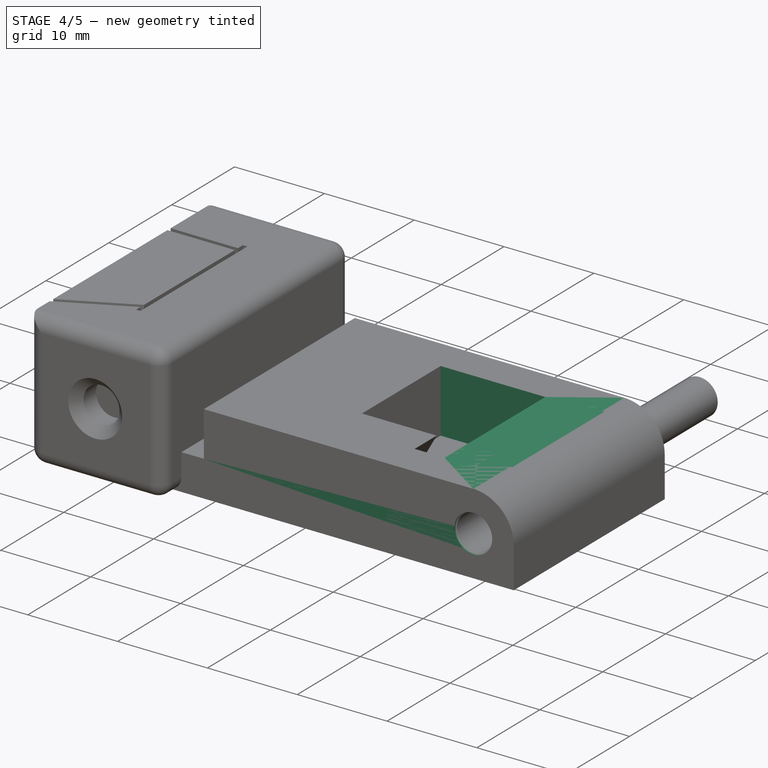
[diagram: stage 4 of 5 — iso view after this stage's code; geometry added in this stage tinted green]
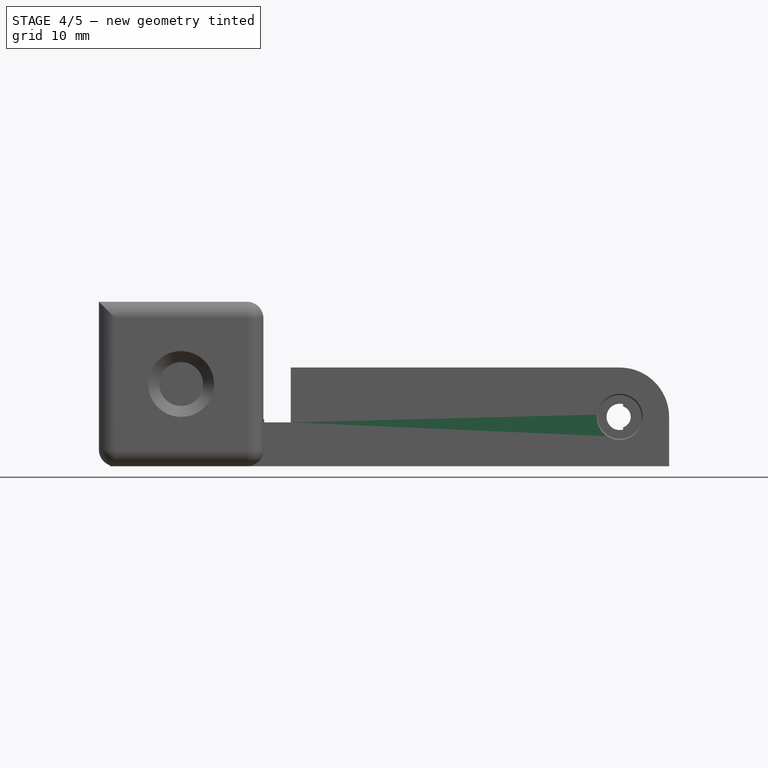
[diagram: stage 4 of 5 — front view after this stage's code; geometry added in this stage tinted green]
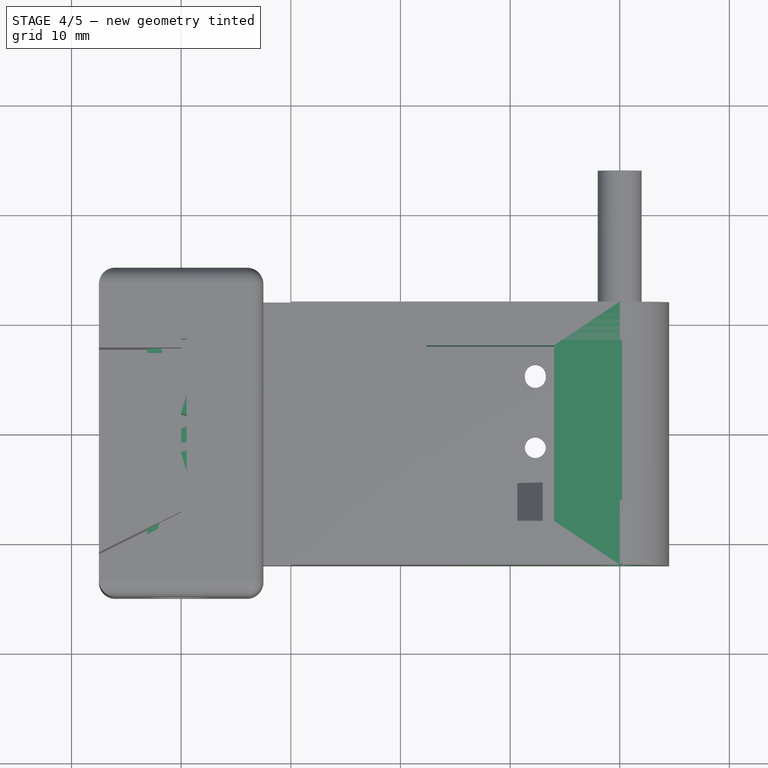
[diagram: stage 4 of 5 — top view after this stage's code; geometry added in this stage tinted green]
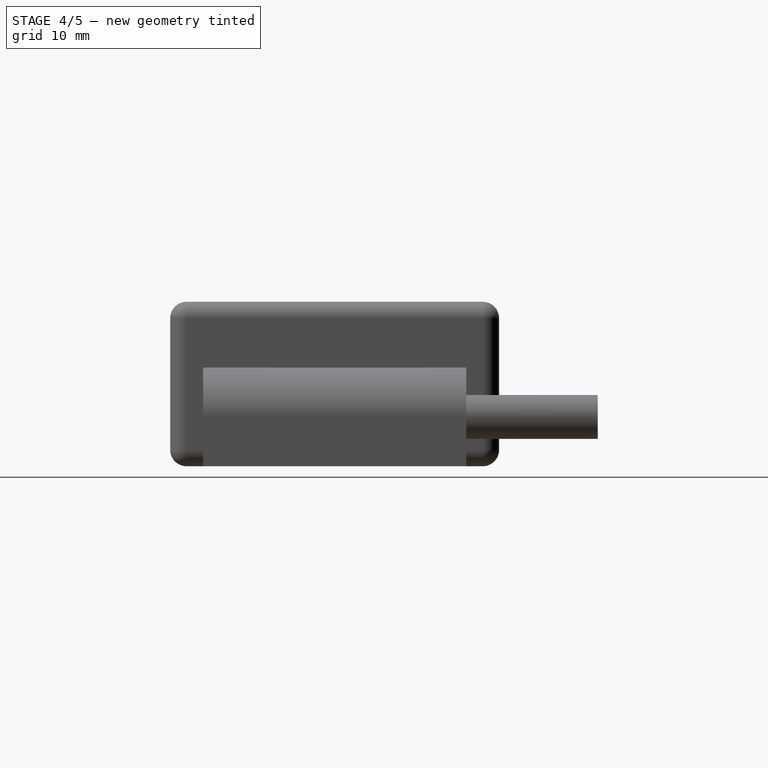
[diagram: stage 4 of 5 — right view after this stage's code; geometry added in this stage tinted green]
FEATURE [Sketcher::SketchObject] Sketch
  FullyConstrained = true
  MapMode = 5
  Support = -> [XY_Plane001]
  TreeRank = 26
  sketch-geometry (9):
    g0: Circle CenterX=0 CenterY=0 CenterZ=0 NormalX=0 NormalY=0 NormalZ=1 AngleXU=0 Radius=1.7
    g1: LineSegment StartX=-3.1 StartY=12 StartZ=0 EndX=44.5 EndY=12 EndZ=0
    g2: LineSegment StartX=44.5 StartY=12 StartZ=0 EndX=44.5 EndY=-12 EndZ=0
    g3: LineSegment StartX=44.5 StartY=-12 StartZ=0 EndX=-3.1 EndY=-12 EndZ=0
    g4: LineSegment StartX=-3.1 StartY=-12 StartZ=0 EndX=-3.1 EndY=12 EndZ=0
    g5: LineSegment StartX=14 StartY=8 StartZ=0 EndX=34 EndY=8 EndZ=0
    g6: LineSegment StartX=34 StartY=8 StartZ=0 EndX=34 EndY=-8 EndZ=0
    g7: LineSegment StartX=34 StartY=-8 StartZ=0 EndX=14 EndY=-8 EndZ=0
    g8: LineSegment StartX=14 StartY=-8 StartZ=0 EndX=14 EndY=8 EndZ=0
  constraints (24):
    c: Coincident(g0,g-1)
    c: Coincident(g1,g2)
    c: Coincident(g2,g3)
    c: Coincident(g3,g4)
    c: Coincident(g4,g1)
    c: Horizontal(g1)
    c: Horizontal(g3)
    c: Vertical(g2)
    c: Symmetric(g1,g3,g-1)
    c: DistanceY(g4,g4) = 24
    c: Radius(g0) = 1.7
    c: Coincident(g5,g6)
    c: Coincident(g6,g7)
    c: Coincident(g7,g8)
    c: Coincident(g8,g5)
    c: Horizontal(g5)
    c: Horizontal(g7)
    c: Vertical(g6)
    c: Symmetric(g5,g7,g-1)
    c: DistanceY(g8,g8) = 16
    c: DistanceX(g5,g5) = 20
    c: DistanceX(g7) = 14
    c: DistanceX(g3) = -3.1
    c: DistanceX(g3,g3) = 47.6
FEATURE [PartDesign::Pad] Pad
  AddSubType = 0
  CheckUpToFaceLimits = true
  ClaimChildren = false
  Direction = (0,0,1)
  Fit = 0
  FitJoin = 0
  InnerFit = 0
  InnerFitJoin = 0
  InnerTaperAngle = 0
  InnerTaperAngleRev = 0
  Length = 10
  Length2 = 100
  Linearize = true
  NewSolid = false
  Profile = -> Sketch
  Suppress = false
  TreeRank = 27
  Type = 0
  _ProfileBasedVersion = 1
FEATURE [Sketcher::SketchObject] Sketch001
  FullyConstrained = true
  MapMode = 5
  Placement = pos=(0,-12,0) rot=(1,0,0;1.5708rad)
  Support = -> [Pad]
  TreeRank = 28
  sketch-geometry (7):
    g0: LineSegment StartX=3 StartY=10.1 StartZ=0 EndX=44.5 EndY=10.1 EndZ=0
    g1: LineSegment StartX=10 StartY=9 StartZ=0 EndX=10 EndY=4 EndZ=0
    g2: LineSegment StartX=10 StartY=4 StartZ=0 EndX=3 EndY=4 EndZ=0
    g3: LineSegment StartX=3 StartY=4 StartZ=0 EndX=3 EndY=10.1 EndZ=0
    g4: LineSegment StartX=40 StartY=9 StartZ=0 EndX=10 EndY=9 EndZ=0
    g5: ArcOfCircle CenterX=40 CenterY=4.5 CenterZ=0 NormalX=0 NormalY=0 NormalZ=1 AngleXU=0 Radius=4.5 StartAngle=0 EndAngle=1.5708
    g6: LineSegment StartX=44.5 StartY=4.5 StartZ=0 EndX=44.5 EndY=10.1 EndZ=0
  constraints (23):
    c: Coincident(g1,g2)
    c: Coincident(g2,g3)
    c: Coincident(g3,g0)
    c: Horizontal(g0)
    c: Horizontal(g2)
    c: Vertical(g1)
    c: Vertical(g3)
    c: DistanceX(g2) = 3
    c: DistanceX(g2,g2) = 7
    c: Horizontal(g4)
    c: DistanceY(g1,g4) = 5
    c: DistanceY(g2) = 4
    c: Radius(g5) = 4.5
    c: Coincident(g6,g5)
    c: Vertical(g6)
    c: Coincident(g4,g5)
    c: Horizontal(g5,g5)
    c: PointOnObject(g1,g4)
    c: DistanceY(g3,g3) = 6.1
    c: DistanceX(g4,g4) = 30
    c: Coincident(g0,g6)
    c: DistanceX(g5) = 40
    c: DistanceY(g5) = 4.5
FEATURE [PartDesign::Pocket] Pocket
  AddSubType = 1
  BaseFeature = -> Pad
  CheckUpToFaceLimits = true
  ClaimChildren = false
  Fit = 0
  FitJoin = 0
  InnerFit = 0
  InnerFitJoin = 0
  InnerTaperAngle = 0
  InnerTaperAngleRev = 0
  Length = 5
  Length2 = 100
  Linearize = true
  NewSolid = false
  Profile = -> Sketch001
  Suppress = false
  TreeRank = 29
  Type = 1
  _ProfileBasedVersion = 1
  _Version = 0
FEATURE [Sketcher::SketchObject] Sketch002
  FullyConstrained = true
  MapMode = 5
  Placement = pos=(0,-12,0) rot=(1,0,0;1.5708rad)
  Support = -> [Pocket]
  TreeRank = 30
  sketch-geometry (1):
    g0: Circle CenterX=40 CenterY=4.5 CenterZ=0 NormalX=0 NormalY=0 NormalZ=1 AngleXU=0 Radius=2.1
  constraints (3):
    c: Radius(g0) = 2.1
    c: DistanceX(g0) = 40
    c: DistanceY(g0) = 4.5
FEATURE [PartDesign::Pocket] Pocket001
  AddSubType = 1
  BaseFeature = -> Pocket
  CheckUpToFaceLimits = true
  ClaimChildren = false
  Fit = 0
  FitJoin = 0
  InnerFit = 0
  InnerFitJoin = 0
  InnerTaperAngle = 0
  InnerTaperAngleRev = 0
  Length = 5
  Length2 = 100
  Linearize = true
  NewSolid = false
  Profile = -> Sketch002
  Suppress = false
  TreeRank = 31
  Type = 1
  _ProfileBasedVersion = 1
  _Version = 0
FEATURE [Sketcher::SketchObject] Sketch018
  FullyConstrained = false
  MapMode = 5
  Support = -> [XY_Plane004]
  TreeRank = 120
  sketch-geometry (11):
    g0: LineSegment StartX=-6.4 StartY=3.3 StartZ=0 EndX=6.4 EndY=3.3 EndZ=0
    g1: LineSegment StartX=6.4 StartY=3.3 StartZ=0 EndX=6.4 EndY=-3.3 EndZ=0
    g2: LineSegment StartX=6.4 StartY=-3.3 StartZ=0 EndX=-6.4 EndY=-3.3 EndZ=0
    g3: LineSegment StartX=-6.4 StartY=-3.3 StartZ=0 EndX=-6.4 EndY=3.3 EndZ=0
    g4: Circle CenterX=3.25 CenterY=-1.7 CenterZ=0 NormalX=0 NormalY=0 NormalZ=1 AngleXU=0 Radius=1
    g5: ArcOfCircle CenterX=-3.35 CenterY=-1.7 CenterZ=0 NormalX=0 NormalY=0 NormalZ=1 AngleXU=0 Radius=1 StartAngle=1.5708 EndAngle=4.71239
    g6: ArcOfCircle CenterX=-3.15 CenterY=-1.7 CenterZ=0 NormalX=0 NormalY=0 NormalZ=1 AngleXU=0 Radius=1 StartAngle=4.71239 EndAngle=7.85398
    g7: LineSegment StartX=-3.35 StartY=-2.7 StartZ=0 EndX=-3.15 EndY=-2.7 EndZ=0
    g8: LineSegment StartX=-3.15 StartY=-0.7 StartZ=0 EndX=-3.35 EndY=-0.7 EndZ=0
    g9: LineSegment [constr] StartX=-4.35 StartY=-1.7 StartZ=0 EndX=-2.15 EndY=-1.7 EndZ=0
    g10: LineSegment [constr] StartX=-3.25 StartY=-1.7 StartZ=0 EndX=-3.25 EndY=-1.84147 EndZ=0
  constraints (30):
    c: Coincident(g0,g1)
    c: Coincident(g1,g2)
    c: Coincident(g2,g3)
    c: Coincident(g3,g0)
    c: Horizontal(g0)
    c: Horizontal(g2)
    c: Vertical(g1)
    c: Vertical(g3)
    c: DistanceX(g0,g0) = 12.8
    c: Symmetric(g0,g1,g-1)
    c: DistanceY(g3,g3) = 6.6
    c: Radius(g4) = 1
    c: DistanceY(g4,g0) = 5
    c: Tangent(g5,g7) = -1.5708
    c: Tangent(g7,g6) = -1.5708
    c: Tangent(g6,g8) = -1.5708
    c: Tangent(g8,g5) = -1.5708
    c: Equal(g5,g6)
    c: Horizontal(g8)
    c: Radius(g6) = 1
    c: PointOnObject(g9,g5)
    c: Horizontal(g9)
    c: PointOnObject(g9,g6)
    c: PointOnObject(g5,g9)
    c: DistanceX(g9,g9) = 2.2
    c: Horizontal(g9,g4)
    c: PointOnObject(g10,g9)
    c: Symmetric(g5,g6,g10)
    c: DistanceX(g10,g4) = 6.5
    c: DistanceX(g2,g10) = 3.15
FEATURE [PartDesign::Pad] Pad004
  AddSubType = 0
  CheckUpToFaceLimits = true
  ClaimChildren = false
  Direction = (0,0,1)
  Fit = 0
  FitJoin = 0
  InnerFit = 0
  InnerFitJoin = 0
  InnerTaperAngle = 0
  InnerTaperAngleRev = 0
  Length = 5.7
  Length2 = 100
  Linearize = true
  NewSolid = false
  Profile = -> Sketch018
  Suppress = false
  TreeRank = 121
  Type = 0
  _ProfileBasedVersion = 1
FEATURE [Sketcher::SketchObject] Sketch019
  AttachmentOffset = pos=(0,0,-1.4) rot=(0,0,1;0rad)
  ExternalGeometry = -> [Pad004]
  FullyConstrained = false
  MapMode = 5
  Placement = pos=(0,0,4.3) rot=(0,0,1;0rad)
  Support = -> [Pad004]
  TreeRank = 122
  sketch-geometry (3):
    g0: ArcOfCircle CenterX=-1.95 CenterY=3.2 CenterZ=0 NormalX=0 NormalY=0 NormalZ=1 AngleXU=0 Radius=0.6 StartAngle=1.53e-14 EndAngle=3.14159
    g1: LineSegment [constr] StartX=-3.23314 StartY=3.8 StartZ=0 EndX=-0.740034 EndY=3.8 EndZ=0
    g2: LineSegment StartX=-2.55 StartY=3.2 StartZ=0 EndX=-1.35 EndY=3.2 EndZ=0
  constraints (9):
    c: DistanceX(g0,g-3) = 5.2
    c: DistanceX(g0,g0) = 1.2
    c: Horizontal(g1)
    c: Tangent(g1,g0)
    c: DistanceY(g-3,g1) = 5.5
    c: Coincident(g2,g0)
    c: Coincident(g2,g0)
    c: Angle(g0) = 3.14159
    c: Horizontal(g2)
FEATURE [PartDesign::Pad] Pad005
  AddSubType = 0
  BaseFeature = -> Pad004
  CheckUpToFaceLimits = true
  ClaimChildren = false
  Direction = (0,0,1)
  Fit = 0
  FitJoin = 0
  InnerFit = 0
  InnerFitJoin = 0
  InnerTaperAngle = 0
  InnerTaperAngleRev = 0
  Length = 2.9
  Length2 = 100
  Linearize = true
  NewSolid = false
  Profile = -> Sketch019
  Reversed = true
  Suppress = false
  TreeRank = 123
  Type = 0
  _ProfileBasedVersion = 1
FEATURE [Sketcher::SketchObject] Sketch020
  FullyConstrained = false
  MapMode = 5
  Placement = pos=(0,2e-15,9) rot=(0,0,1;0rad)
  Support = -> [Pocket013]
  TreeRank = 125
  sketch-geometry (4):
    g0: LineSegment StartX=22.35 StartY=8.5 StartZ=0 EndX=40.35 EndY=8.5 EndZ=0
    g1: LineSegment StartX=40.35 StartY=8.5 StartZ=0 EndX=40.35 EndY=-4.5 EndZ=0
    g2: LineSegment StartX=40.35 StartY=-4.5 StartZ=0 EndX=22.35 EndY=-4.5 EndZ=0
    g3: LineSegment StartX=22.35 StartY=-4.5 StartZ=0 EndX=22.35 EndY=8.5 EndZ=0
  constraints (11):
    c: Coincident(g0,g1)
    c: Coincident(g1,g2)
    c: Coincident(g2,g3)
    c: Coincident(g3,g0)
    c: Horizontal(g0)
    c: Horizontal(g2)
    c: Vertical(g1)
    c: DistanceY(g3,g3) = 13
    c: DistanceX(g0) = 22.35
    c: DistanceX(g0,g0) = 18
    c: DistanceY(g2) = -4.5
FEATURE [Sketcher::SketchObject] Sketch022
  AttachmentOffset = pos=(0,0,-1.4) rot=(0,0,1;0rad)
  ExternalGeometry = -> [Pad005]
  FullyConstrained = false
  MapMode = 5
  Placement = pos=(0,0,4.3) rot=(0,0,1;0rad)
  Support = -> [Pad005]
  TreeRank = 129
  sketch-geometry (5):
    g0: GeomPoint [constr] X=-5.4 Y=3.3 Z=0
    g1: LineSegment StartX=-5.4 StartY=3.3 StartZ=0 EndX=7.56557 EndY=4.24552 EndZ=0
    g2: LineSegment StartX=-5.4 StartY=3.3 StartZ=0 EndX=-5.40727 EndY=3.39974 EndZ=0
    g3: LineSegment StartX=-5.40727 StartY=3.39974 StartZ=0 EndX=7.5583 EndY=4.34526 EndZ=0
    g4: LineSegment StartX=7.5583 StartY=4.34526 StartZ=0 EndX=7.56557 EndY=4.24552 EndZ=0
  constraints (13):
    c: PointOnObject(g0,g-3)
    c: DistanceX(g-3,g0) = 1
    c: Coincident(g1,g0)
    c: Distance(g1) = 13
    c: Coincident(g2,g1)
    c: Coincident(g3,g2)
    c: Coincident(g4,g1)
    c: Perpendicular(g4,g1)
    c: Parallel(g1,g3)
    c: Perpendicular(g1,g2)
    c: Equal(g2,g4)
    c: Distance(g4) = 0.1
    c: PointOnObject(g3,g4)
FEATURE [PartDesign::Pad] Pad006
  AddSubType = 0
  BaseFeature = -> Pad005
  CheckUpToFaceLimits = true
  ClaimChildren = false
  Direction = (0,0,1)
  Fit = 0
  FitJoin = 0
  InnerFit = 0
  InnerFitJoin = 0
  InnerTaperAngle = 0
  InnerTaperAngleRev = 0
  Length = 2.9
  Length2 = 100
  Linearize = true
  NewSolid = false
  Profile = -> Sketch022
  Reversed = true
  Suppress = false
  TreeRank = 130
  Type = 0
  _ProfileBasedVersion = 1
FEATURE [PartDesign::Plane] DatumPlane
  Length = 42
  MapMode = 5
  MinimumLength = 10
  MinimumWidth = 10
  ResizeMode = 0
  Support = -> [XY_Plane]
  TreeRank = 159
  Width = 23.9739
FEATURE [Sketcher::SketchObject] Sketch026
  FullyConstrained = false
  MapMode = 5
  Support = -> [DatumPlane]
  TreeRank = 160
  sketch-geometry (4):
    g0: LineSegment StartX=38 StartY=38.39 StartZ=0 EndX=42 EndY=38.39 EndZ=0
    g1: LineSegment StartX=42 StartY=38.39 StartZ=0 EndX=42 EndY=23.9739 EndZ=0
    g2: LineSegment StartX=38 StartY=22.4833 StartZ=0 EndX=38 EndY=38.39 EndZ=0
    g3: LineSegment StartX=38 StartY=22.4833 StartZ=0 EndX=42 EndY=23.9739 EndZ=0
  constraints (10):
    c: Coincident(g0,g1)
    c: Coincident(g2,g0)
    c: Horizontal(g0)
    c: Vertical(g1)
    c: Vertical(g2)
    c: DistanceX(g0) = 42
    c: DistanceY(g0) = 38.39
    c: DistanceX(g0,g0) = 4
    c: Coincident(g1,g3)
    c: Coincident(g2,g3)
FEATURE [PartDesign::Pocket] Pocket018
  AddSubType = 1
  BaseFeature = -> Pad007
  CheckUpToFaceLimits = true
  ClaimChildren = false
  Fit = 0
  FitJoin = 0
  InnerFit = 0
  InnerFitJoin = 0
  InnerTaperAngle = 0
  InnerTaperAngleRev = 0
  Length = 7
  Length2 = 100
  Linearize = true
  NewSolid = false
  Placement = pos=(0,0,0) rot=(1,0,0;1.5708rad)
  Profile = -> Sketch026
  Reversed = true
  Suppress = false
  TreeRank = 162
  Type = 0
  _ProfileBasedVersion = 1
  _Version = 0
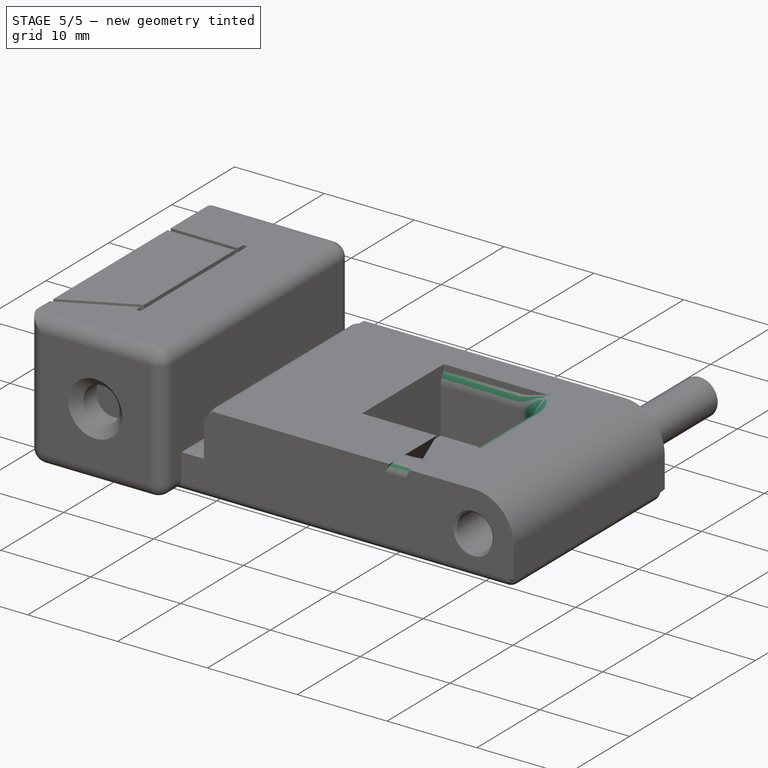
[diagram: stage 5 of 5 — iso view after this stage's code; geometry added in this stage tinted green]
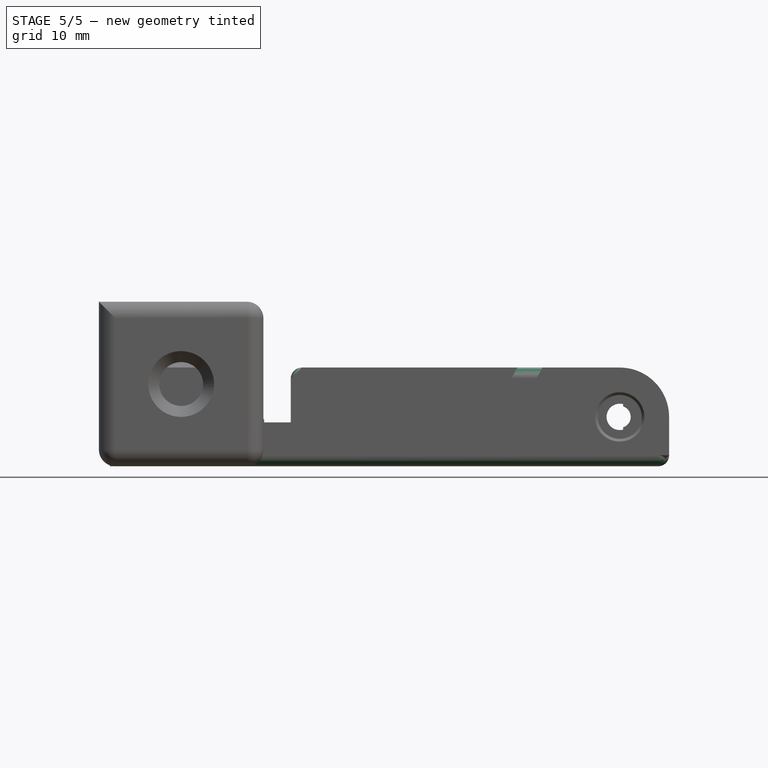
[diagram: stage 5 of 5 — front view after this stage's code; geometry added in this stage tinted green]
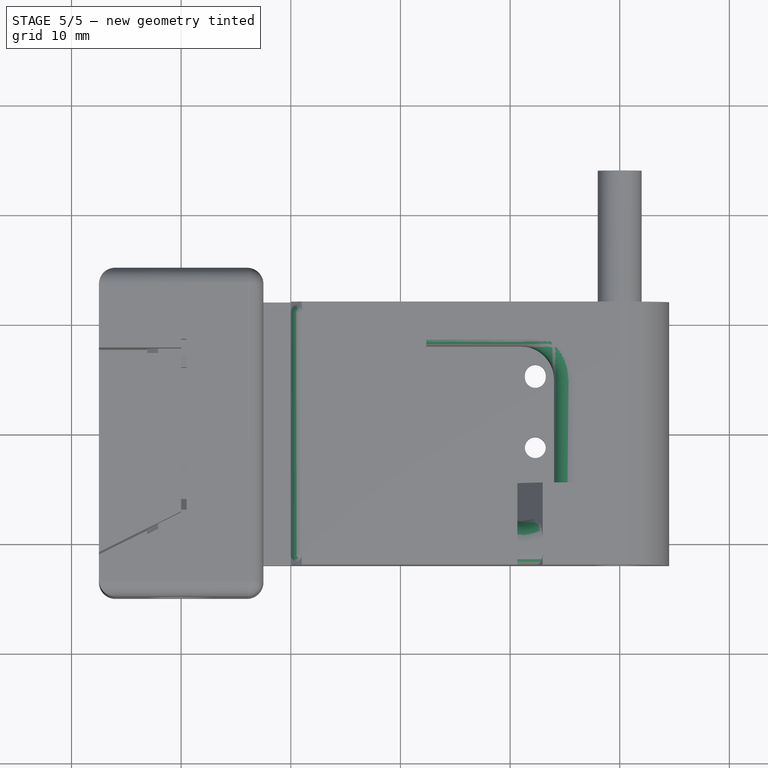
[diagram: stage 5 of 5 — top view after this stage's code; geometry added in this stage tinted green]
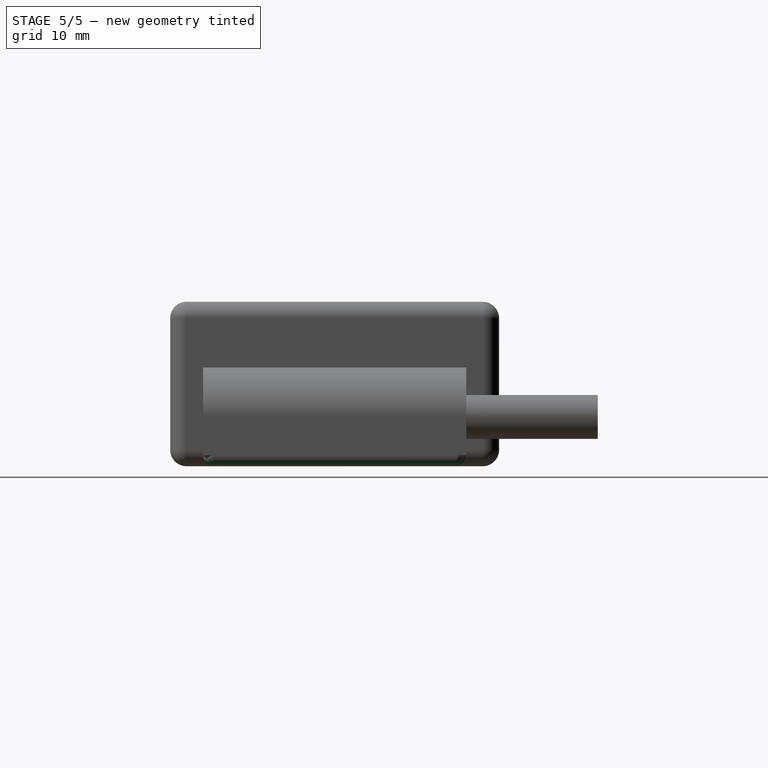
[diagram: stage 5 of 5 — right view after this stage's code; geometry added in this stage tinted green]
FEATURE [Sketcher::SketchObject] Sketch003
  FullyConstrained = true
  MapMode = 5
  Placement = pos=(0,0,10) rot=(0,0,1;0rad)
  Support = -> [Pocket001]
  TreeRank = 32
  sketch-geometry (4):
    g0: LineSegment StartX=-3.5 StartY=6 StartZ=0 EndX=3.5 EndY=6 EndZ=0
    g1: LineSegment StartX=3.5 StartY=6 StartZ=0 EndX=3.5 EndY=-6 EndZ=0
    g2: LineSegment StartX=3.5 StartY=-6 StartZ=0 EndX=-3.5 EndY=-6 EndZ=0
    g3: LineSegment StartX=-3.5 StartY=-6 StartZ=0 EndX=-3.5 EndY=6 EndZ=0
  constraints (10):
    c: Coincident(g0,g1)
    c: Coincident(g1,g2)
    c: Coincident(g2,g3)
    c: Coincident(g3,g0)
    c: Horizontal(g2)
    c: Vertical(g1)
    c: Symmetric(g2,g0,g-1)
    c: DistanceY(g3,g3) = 12
    c: DistanceX(g2,g2) = 7
    c: Symmetric(g0,g0,g-2)
FEATURE [PartDesign::Pocket] Pocket002
  AddSubType = 1
  BaseFeature = -> Pocket001
  CheckUpToFaceLimits = true
  ClaimChildren = false
  Fit = 0
  FitJoin = 0
  InnerFit = 0
  InnerFitJoin = 0
  InnerTaperAngle = 0
  InnerTaperAngleRev = 0
  Length = 6
  Length2 = 100
  Linearize = true
  NewSolid = false
  Profile = -> Sketch003
  Suppress = false
  TreeRank = 33
  Type = 0
  _ProfileBasedVersion = 1
  _Version = 0
FEATURE [PartDesign::Fillet] Fillet
  AddSubType = 0
  Base = -> Pocket002 [Edge51,Edge50,Edge52,Edge53]
  BaseFeature = -> Pocket002
  NewSolid = false
  Radius = 3
  SupportTransform = false
  Suppress = false
  TreeRank = 34
FEATURE [PartDesign::Fillet] Fillet001
  AddSubType = 0
  Base = -> Fillet [Edge29,Edge28,Edge1]
  BaseFeature = -> Fillet
  NewSolid = false
  Radius = 2
  SupportTransform = false
  Suppress = false
  TreeRank = 35
FEATURE [PartDesign::Fillet] Fillet002
  AddSubType = 0
  Base = -> Fillet001 [Edge38,Edge48,Edge13]
  BaseFeature = -> Fillet001
  NewSolid = false
  Radius = 0.5
  SupportTransform = false
  Suppress = false
  TreeRank = 36
FEATURE [PartDesign::Chamfer] Chamfer
  AddSubType = 0
  Angle = 45
  Base = -> Fillet002 [Edge76,Edge77,Edge51,Edge35,Edge97,Edge98,Edge46,Edge55]
  BaseFeature = -> Fillet002
  ChamferType = 0
  FlipDirection = false
  NewSolid = false
  Size = 1
  Size2 = 1
  SupportTransform = false
  Suppress = false
  TreeRank = 37
FEATURE [PartDesign::Fillet] Fillet003
  AddSubType = 0
  Base = -> Chamfer [Edge18,Edge58,Edge20,Edge75,Edge70,Edge119,Edge113,Edge68]
  BaseFeature = -> Chamfer
  NewSolid = false
  Radius = 1
  SupportTransform = false
  Suppress = false
  TreeRank = 38
FEATURE [PartDesign::Fillet] Fillet006
  AddSubType = 0
  Base = -> Fillet003 [Edge3,Edge10,Edge11,Edge60,Edge9,Edge8,Edge1,Edge19,Edge21,Edge23,Edge16,Edge75,Edge47,Edge61,Edge67,Edge59,Edge36,Edge37]
  BaseFeature = -> Fillet003
  NewSolid = false
  Radius = 1
  SupportTransform = false
  Suppress = false
  TreeRank = 72
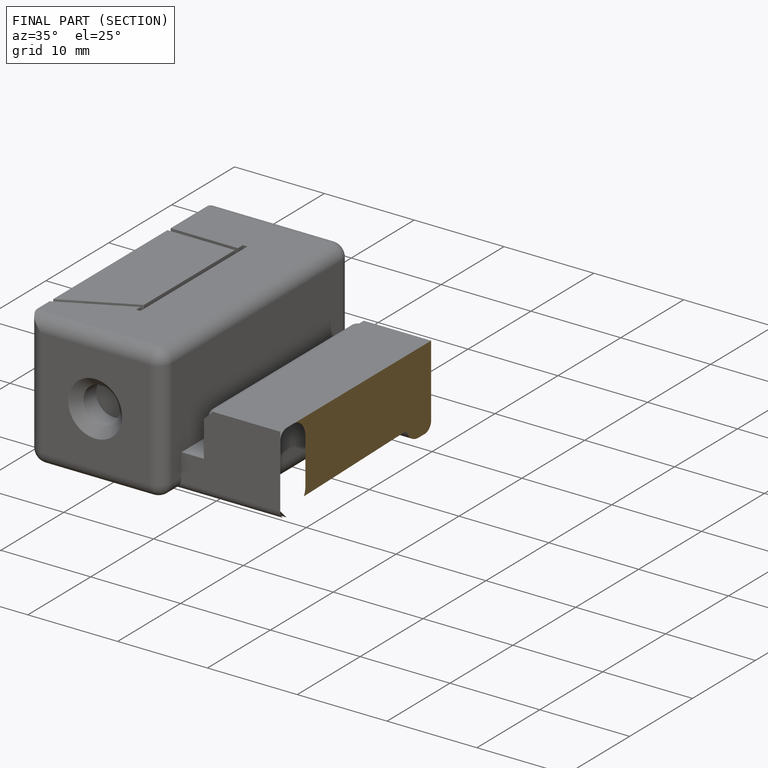
[diagram: finished part — half-section view (interior)]
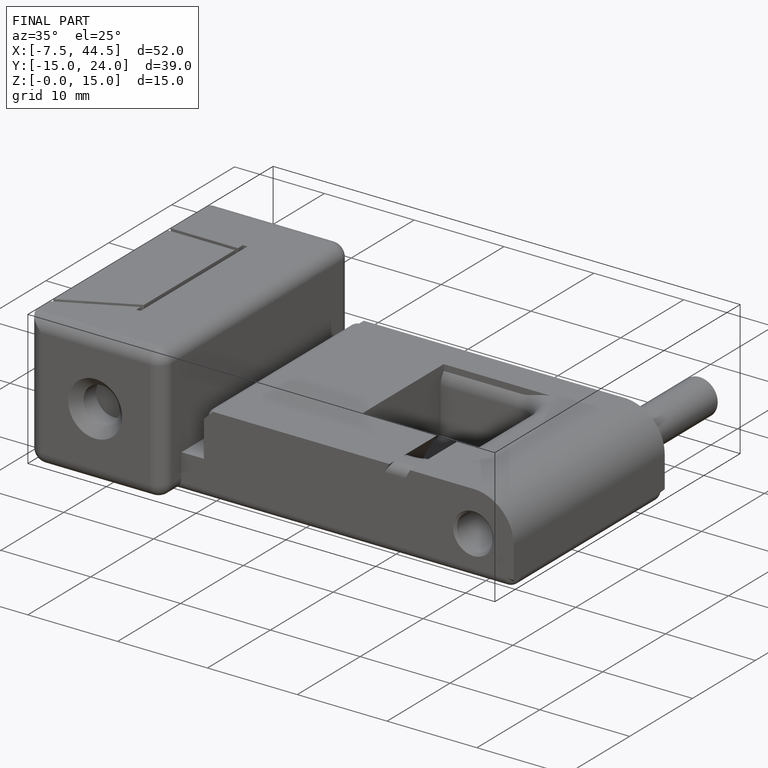
[diagram: finished part — iso view with bounding-box wireframe]
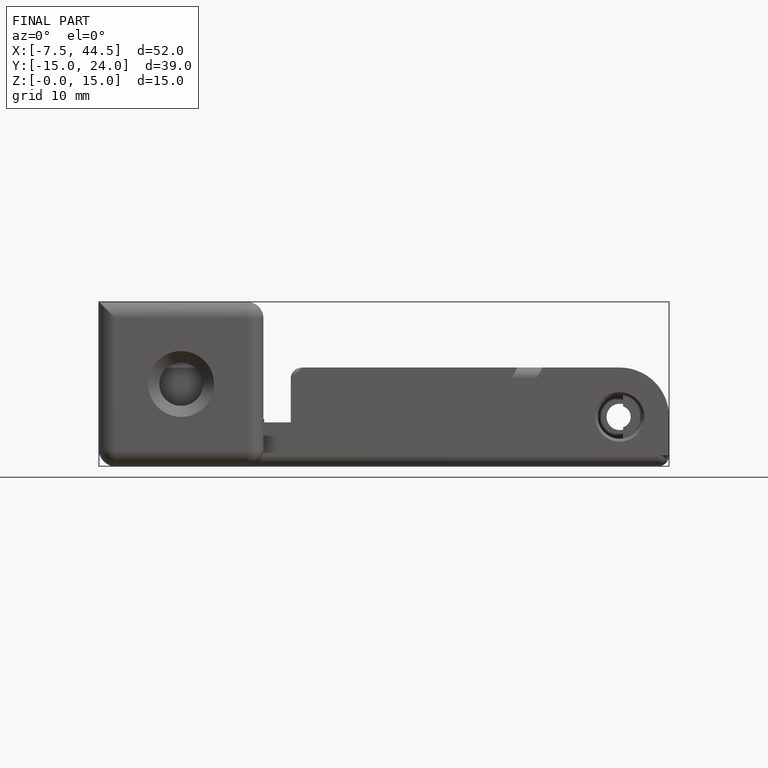
[diagram: finished part — front view with bounding-box wireframe]
